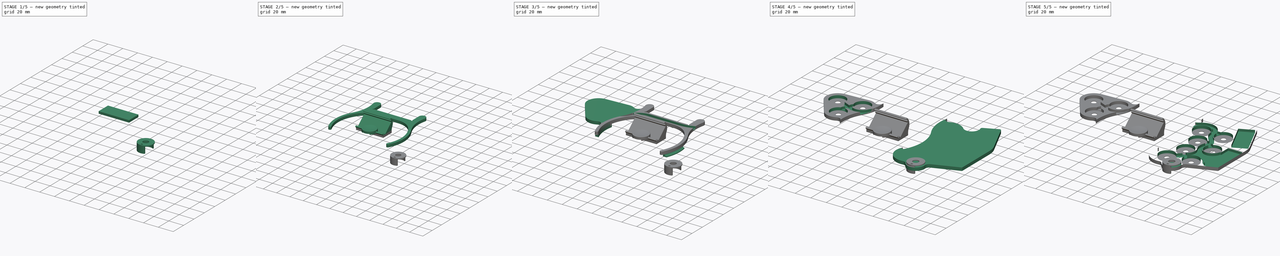
[diagram: build sequence overview — one tinted view per stage of 5, left to right]
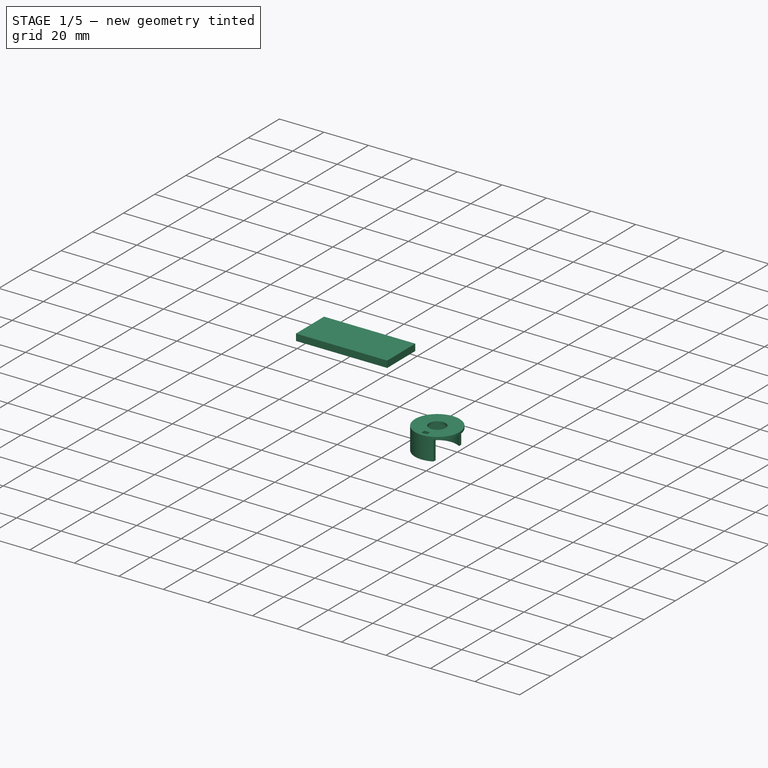
[diagram: stage 1 of 5 — iso view after this stage's code; geometry added in this stage tinted green]
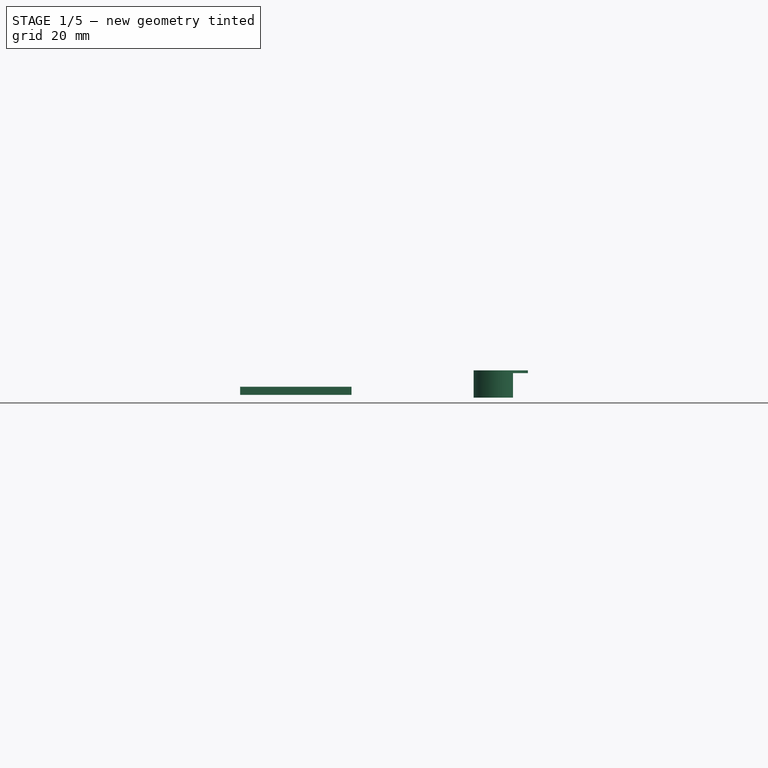
[diagram: stage 1 of 5 — front view after this stage's code; geometry added in this stage tinted green]
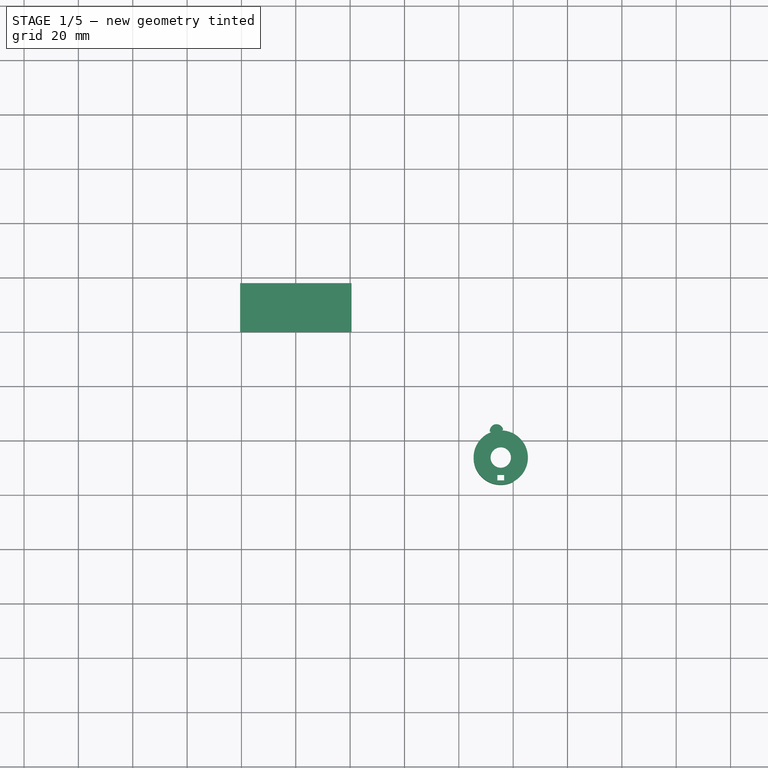
[diagram: stage 1 of 5 — top view after this stage's code; geometry added in this stage tinted green]
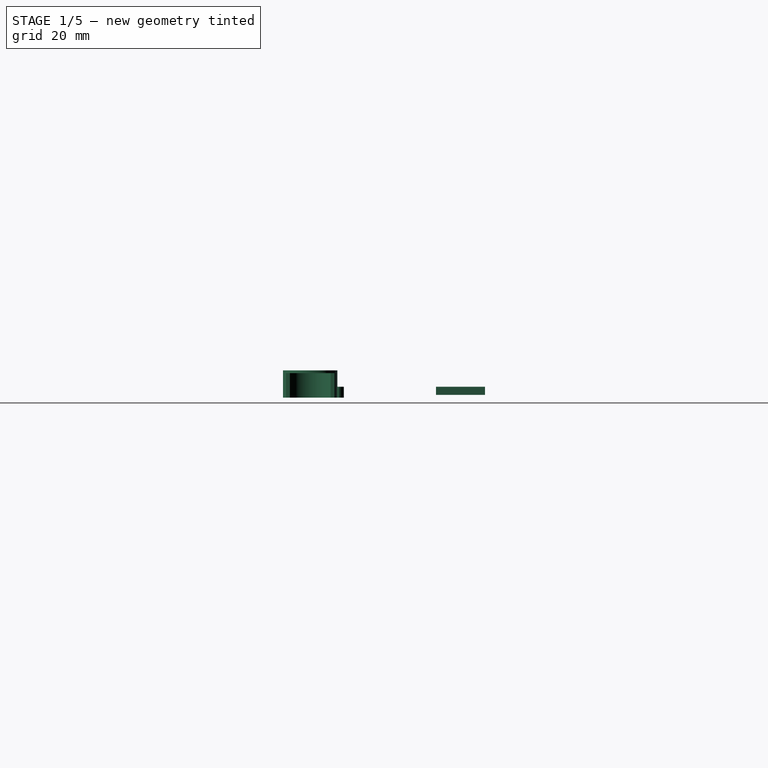
[diagram: stage 1 of 5 — right view after this stage's code; geometry added in this stage tinted green]
FCSTD DOCUMENT  (FreeCAD 0.20R)
Label: Guitar_Base
License: All rights reserved
LicenseURL: http://en.wikipedia.org/wiki/All_rights_reserved
objects: Sketcher::SketchObject×16, PartDesign::Pad×9, PartDesign::SubShapeBinder×8, PartDesign::Pocket×7, PartDesign::Body×6, App::Link×3, PartDesign::Hole×2, PartDesign::Groove×1, Spreadsheet::Sheet×1, PartDesign::Revolution×1
note: 70 computed .brp shape members not serialized (recipe doc carries the construction recipe); baked Part::Feature solids carry a one-line shape summary decoded from their .brp

FEATURE [Sketcher::SketchObject] Sketch011
  FullyConstrained = false
  MapMode = 5
  Support = -> [XY_Plane003]
  sketch-geometry (5):
    g0: LineSegment StartX=-5.56878 StartY=-8.30594 StartZ=0 EndX=5.55517 EndY=-8.30594 EndZ=0
    g1: LineSegment StartX=5.55517 StartY=-8.30594 StartZ=0 EndX=5.55517 EndY=5.69406 EndZ=0
    g2: LineSegment StartX=5.55517 StartY=5.69406 StartZ=0 EndX=-5.56878 EndY=5.69406 EndZ=0
    g3: LineSegment StartX=-5.56878 StartY=5.69406 StartZ=0 EndX=-5.56878 EndY=-8.30594 EndZ=0
    g4: Circle CenterX=0 CenterY=0 CenterZ=0 NormalX=0 NormalY=0 NormalZ=1 AngleXU=0 Radius=10
  constraints (12):
    c: Coincident(g0,g1)
    c: Coincident(g1,g2)
    c: Coincident(g2,g3)
    c: Coincident(g3,g0)
    c: Horizontal(g0)
    c: Horizontal(g2)
    c: Vertical(g1)
    c: Vertical(g3)
    c: DistanceY(g1,g1) = 14
    c: Coincident(g4,g-1)
    c: Diameter(g4) = 20
    c: PointOnObject(g0,g4)
FEATURE [PartDesign::Body] Body003  label="button"
  Group = -> [Sketch009,Revolution,Sketch010,Pocket007,Sketch011]
  Origin = -> Origin003
  Tip = -> Pocket007
FEATURE [Sketcher::SketchObject] Sketch012
  FullyConstrained = true
  MapMode = 5
  Support = -> [XY_Plane004]
  sketch-geometry (4):
    g0: LineSegment StartX=-20.5 StartY=0 StartZ=0 EndX=20.5 EndY=0 EndZ=0
    g1: LineSegment StartX=20.5 StartY=0 StartZ=0 EndX=20.5 EndY=18 EndZ=0
    g2: LineSegment StartX=20.5 StartY=18 StartZ=0 EndX=-20.5 EndY=18 EndZ=0
    g3: LineSegment StartX=-20.5 StartY=18 StartZ=0 EndX=-20.5 EndY=0 EndZ=0
  constraints (11):
    c: Coincident(g0,g1)
    c: Coincident(g1,g2)
    c: Coincident(g2,g3)
    c: Coincident(g3,g0)
    c: Horizontal(g0)
    c: Vertical(g1)
    c: Vertical(g3)
    c: DistanceY(g1,g1) = 18
    c: DistanceX(g2,g2) = 41
    c: PointOnObject(g0,g-1)
    c: Symmetric(g2,g1,g-2)
FEATURE [Sketcher::SketchObject] Sketch014
  FullyConstrained = true
  MapMode = 5
  Placement = pos=(0,0,0) rot=(0.57735,0.57735,0.57735;2.0944rad)
  Support = -> [YZ_Plane004]
  sketch-geometry (21):
    g0: LineSegment StartX=0 StartY=0 StartZ=0 EndX=18 EndY=0 EndZ=0
    g1: LineSegment StartX=18 StartY=0 StartZ=0 EndX=18 EndY=15.8745 EndZ=0
    g2: LineSegment StartX=0 StartY=0 StartZ=0 EndX=-1.78588 EndY=2.025 EndZ=0
    g3: LineSegment StartX=-1.78588 StartY=2.025 StartZ=0 EndX=-0.285882 EndY=3.34788 EndZ=0
    g4: LineSegment StartX=-0.285882 StartY=3.34788 StartZ=0 EndX=0.375556 EndY=2.59788 EndZ=0
    g5: LineSegment StartX=0.375556 StartY=2.59788 StartZ=0 EndX=-0.374444 EndY=1.93644 EndZ=0
    g6: LineSegment StartX=-0.374444 StartY=1.93644 StartZ=0 EndX=0.75 EndY=0.661438 EndZ=0
    g7: LineSegment StartX=0.75 StartY=0.661438 StartZ=0 EndX=2.25 EndY=1.98431 EndZ=0
    g8: LineSegment StartX=2.25 StartY=1.98431 StartZ=0 EndX=3.90359 EndY=0.109313 EndZ=0
    g9: LineSegment StartX=3.90359 StartY=0.109313 StartZ=0 EndX=17.4036 EndY=12.0152 EndZ=0
    g10: LineSegment StartX=17.4036 StartY=12.0152 StartZ=0 EndX=15.75 EndY=13.8902 EndZ=0
    g11: LineSegment StartX=15.75 StartY=13.8902 StartZ=0 EndX=17.25 EndY=15.2131 EndZ=0
    g12: LineSegment StartX=17.25 StartY=15.2131 StartZ=0 EndX=16.1256 EndY=16.4881 EndZ=0
    g13: LineSegment StartX=16.1256 StartY=16.4881 StartZ=0 EndX=15.3756 EndY=15.8266 EndZ=0
    g14: LineSegment StartX=15.3756 StartY=15.8266 StartZ=0 EndX=14.7141 EndY=16.5766 EndZ=0
    g15: LineSegment StartX=14.7141 StartY=16.5766 StartZ=0 EndX=16.2141 EndY=17.8995 EndZ=0
    g16: LineSegment StartX=16.2141 StartY=17.8995 StartZ=0 EndX=18 EndY=15.8745 EndZ=0
    g17: LineSegment StartX=17.25 StartY=15.2131 StartZ=0 EndX=18 EndY=15.8745 EndZ=0
    g18: LineSegment StartX=0 StartY=0 StartZ=0 EndX=0.75 EndY=0.661438 EndZ=0
    g19: ArcOfCircle CenterX=10.6944 CenterY=9.43154 CenterZ=0 NormalX=0 NormalY=0 NormalZ=1 AngleXU=0 Radius=9.74085 StartAngle=5.77782 EndAngle=7.00592
    g20: ArcOfCircle CenterX=27.7409 CenterY=0 CenterZ=0 NormalX=0 NormalY=0 NormalZ=1 AngleXU=0 Radius=9.74085 StartAngle=2.63623 EndAngle=3.14159
  constraints (59):
    c: DistanceX(g0,g0) = 18
    c: Coincident(g0,g-1)
    c: PointOnObject(g0,g-1)
    c: Coincident(g2,g0)
    c: Coincident(g3,g2)
    c: Coincident(g4,g3)
    c: Coincident(g5,g4)
    c: Coincident(g6,g5)
    c: Coincident(g7,g6)
    c: Coincident(g8,g7)
    c: Coincident(g9,g8)
    c: Coincident(g10,g9)
    c: Coincident(g11,g10)
    c: Coincident(g12,g11)
    c: Coincident(g13,g12)
    c: Coincident(g14,g13)
    c: Coincident(g15,g14)
    c: Coincident(g16,g15)
    c: Perpendicular(g8,g7)
    c: Perpendicular(g11,g10)
    c: Equal(g4,g14)
    c: Equal(g5,g4)
    c: Distance(g12) = 1.7
    c: Equal(g13,g14)
    c: Distance(g11,g16) = 1
    c: Coincident(g17,g11)
    c: Coincident(g17,g16)
    c: Coincident(g18,g2)
    c: Coincident(g18,g6)
    c: Parallel(g17,g18)
    c: Distance(g2,g16) = 24
    c: Parallel(g11,g17)
    c: Coincident(g16,g1)
    c: Parallel(g9,g11)
    c: Parallel(g11,g13)
    c: Parallel(g11,g15)
    c: Parallel(g7,g5)
    c: Parallel(g5,g3)
    c: Equal(g18,g17)
    c: Perpendicular(g12,g13)
    c: Perpendicular(g16,g17)
    c: Perpendicular(g2,g18)
    c: Parallel(g2,g4)
    c: Parallel(g2,g6)
    c: Parallel(g12,g14)
    c: Tangent(g7,g11)
    c: Equal(g6,g12)
    c: Equal(g17,g14)
    c: Distance(g7) = 2
    c: Equal(g7,g11)
    c: Distance(g10) = 2.5
    c: Tangent(g20,g19) = 1.5708
    c: Tangent(g19,g16) = 1.5708
    c: Equal(g20,g19)
    c: Vertical(g1)
    c: Coincident(g1,g0)
    c: PointOnObject(g20,g-1)
    c: PointOnObject(g20,g-1)
    c: Tangent(g20,g1)
FEATURE [PartDesign::Pad] Pad004
  Direction = (0,0,1)
  Length = 3
  Length2 = 10
  Profile = -> Sketch012
  ReferenceAxis = -> Sketch012 [N_Axis]
  Refine = true
  Reversed = true
  Type = 0
FEATURE [PartDesign::Body] Body004  label="screen_angler"
  Group = -> [Sketch012,Sketch014,Pad004,Pad005]
  Origin = -> Origin004
  Placement = pos=(91.5596,45.4813,5) rot=(0,0,-1;1.15192rad)
  Tip = -> Pad005
FEATURE [PartDesign::SubShapeBinder] Binder007
  BindCopyOnChange = 0
  BindMode = 0
  ClaimChildren = false
  Context = -> Body005 [Binder007.]
  Fuse = false
  MakeFace = true
  OffsetFill = false
  OffsetIntersection = false
  OffsetJoinType = 0
  OffsetOpenResult = false
  PartialLoad = false
  Refine = true
  Relative = true
  Support = -> [Link001]
  _Version = 2
FEATURE [Sketcher::SketchObject] Sketch015
  ExternalGeometry = -> [Binder007]
  FullyConstrained = true
  MapMode = 5
  Support = -> [XY_Plane005]
  sketch-geometry (9):
    g0: ArcOfCircle CenterX=73.8694 CenterY=-36.4199 CenterZ=0 NormalX=0 NormalY=0 NormalZ=1 AngleXU=0 Radius=2.5 StartAngle=0.231429 EndAngle=3.22301
    g1: ArcOfCircle CenterX=71.468 CenterY=-37.1149 CenterZ=0 NormalX=0 NormalY=0 NormalZ=1 AngleXU=0 Radius=0.5 StartAngle=3.57367 EndAngle=8.03556
    g2: ArcOfCircle CenterX=76.3682 CenterY=-36.3421 CenterZ=0 NormalX=0 NormalY=0 NormalZ=1 AngleXU=0 Radius=0.5 StartAngle=1.70206 EndAngle=6.16395
    g3: LineSegment StartX=79.9342 StartY=-37.371 StartZ=0 EndX=79.9342 EndY=-55.2245 EndZ=0
    g4: ArcOfCircle CenterX=75.4272 CenterY=-46.2978 CenterZ=0 NormalX=0 NormalY=0 NormalZ=1 AngleXU=0 Radius=10 StartAngle=1.10325 EndAngle=1.42656
    g5: ArcOfCircle CenterX=75.4272 CenterY=-46.2978 CenterZ=0 NormalX=0 NormalY=0 NormalZ=1 AngleXU=0 Radius=10 StartAngle=2.02788 EndAngle=5.17993
    g6: ArcOfCircle CenterX=75.4272 CenterY=-46.2978 CenterZ=0 NormalX=0 NormalY=0 NormalZ=1 AngleXU=0 Radius=8.75 StartAngle=1.0297 EndAngle=5.25349
    g7: LineSegment StartX=79.9342 StartY=-38.7978 StartZ=0 EndX=79.9342 EndY=-37.371 EndZ=0
    g8: LineSegment StartX=79.9342 StartY=-53.7978 StartZ=0 EndX=79.9342 EndY=-55.2245 EndZ=0
  constraints (26):
    c: PointOnObject(g1,g-3)
    c: Coincident(g0,g-4)
    c: PointOnObject(g0,g-4)
    c: Coincident(g1,g-4)
    c: Coincident(g1,g0)
    c: Coincident(g2,g-4)
    c: Coincident(g2,g0)
    c: Equal(g1,g2)
    c: Radius(g2) = 0.5
    c: PointOnObject(g2,g-3)
    c: Vertical(g3)
    c: Coincident(g4,g-3)
    c: Coincident(g4,g2)
    c: Coincident(g4,g3)
    c: Coincident(g5,g4)
    c: Coincident(g5,g1)
    c: Coincident(g5,g3)
    c: Coincident(g6,g4)
    c: PointOnObject(g6,g3)
    c: PointOnObject(g6,g3)
    c: Diameter(g6) = 17.5
    c: Coincident(g7,g6)
    c: Coincident(g7,g4)
    c: Coincident(g8,g6)
    c: Coincident(g8,g5)
    c: DistanceY(g6,g6) = 15
FEATURE [PartDesign::Pad] Pad006
  Direction = (0,0,1)
  Length = 4
  Length2 = 10
  Profile = -> Sketch015
  ReferenceAxis = -> Sketch015 [N_Axis]
  Refine = true
  Reversed = true
  Type = 0
FEATURE [Sketcher::SketchObject] Sketch016
  ExternalGeometry = -> [Binder007]
  FullyConstrained = true
  MapMode = 5
  Support = -> [XY_Plane005]
  sketch-geometry (7):
    g0: Circle CenterX=75.4272 CenterY=-46.2978 CenterZ=0 NormalX=0 NormalY=0 NormalZ=1 AngleXU=0 Radius=10
    g1: Circle CenterX=75.4272 CenterY=-46.2978 CenterZ=0 NormalX=0 NormalY=0 NormalZ=1 AngleXU=0 Radius=8.75
    g2: LineSegment StartX=79.9342 StartY=-37.371 StartZ=0 EndX=79.9342 EndY=-55.2245 EndZ=0
    g3: ArcOfCircle CenterX=75.4272 CenterY=-46.2978 CenterZ=0 NormalX=0 NormalY=0 NormalZ=1 AngleXU=0 Radius=10 StartAngle=1.10325 EndAngle=5.17993
    g4: ArcOfCircle CenterX=75.4272 CenterY=-46.2978 CenterZ=0 NormalX=0 NormalY=0 NormalZ=1 AngleXU=0 Radius=8.75 StartAngle=1.0297 EndAngle=5.25349
    g5: LineSegment StartX=79.9342 StartY=-38.7978 StartZ=0 EndX=79.9342 EndY=-37.371 EndZ=0
    g6: LineSegment StartX=79.9342 StartY=-55.2245 StartZ=0 EndX=79.9342 EndY=-53.7978 EndZ=0
  constraints (18):
    c: Coincident(g0,g-3)
    c: PointOnObject(g-3,g0)
    c: Coincident(g1,g0)
    c: Diameter(g1) = 17.5
    c: PointOnObject(g2,g0)
    c: Vertical(g2)
    c: Coincident(g3,g0)
    c: Coincident(g3,g2)
    c: Coincident(g3,g2)
    c: Coincident(g4,g3)
    c: PointOnObject(g4,g1)
    c: PointOnObject(g4,g2)
    c: PointOnObject(g4,g2)
    c: Coincident(g5,g4)
    c: Coincident(g5,g3)
    c: Coincident(g6,g3)
    c: Coincident(g6,g4)
    c: DistanceY(g4,g4) = 15
FEATURE [PartDesign::Pad] Pad007
  BaseFeature = -> Pad006
  Direction = (0,0,1)
  Length = 5
  Length2 = 10
  Profile = -> Sketch016
  ReferenceAxis = -> Sketch016 [N_Axis]
  Refine = true
  Type = 0
FEATURE [Sketcher::SketchObject] Sketch017
  AttachmentOffset = pos=(0,0,5) rot=(0,0,1;0rad)
  ExternalGeometry = -> [Binder007]
  FullyConstrained = true
  MapMode = 5
  Placement = pos=(0,0,5) rot=(0,0,1;0rad)
  Support = -> [XY_Plane005]
  sketch-geometry (8):
    g0: Circle CenterX=75.4272 CenterY=-46.2978 CenterZ=0 NormalX=0 NormalY=0 NormalZ=1 AngleXU=0 Radius=3.75
    g1: LineSegment StartX=74.1772 StartY=-54.7054 StartZ=0 EndX=76.6772 EndY=-54.7054 EndZ=0
    g2: LineSegment StartX=76.6772 StartY=-54.7054 StartZ=0 EndX=76.6772 EndY=-52.7054 EndZ=0
    g3: LineSegment StartX=76.6772 StartY=-52.7054 StartZ=0 EndX=74.1772 EndY=-52.7054 EndZ=0
    g4: LineSegment StartX=74.1772 StartY=-52.7054 StartZ=0 EndX=74.1772 EndY=-54.7054 EndZ=0
    g5: LineSegment StartX=74.1772 StartY=-54.7054 StartZ=0 EndX=75.4272 EndY=-46.2978 EndZ=0
    g6: LineSegment StartX=76.6772 StartY=-54.7054 StartZ=0 EndX=75.4272 EndY=-46.2978 EndZ=0
    g7: Circle CenterX=75.4272 CenterY=-46.2978 CenterZ=0 NormalX=0 NormalY=0 NormalZ=1 AngleXU=0 Radius=10
  constraints (20):
    c: Diameter(g0) = 7.5
    c: Coincident(g0,g-3)
    c: Coincident(g1,g2)
    c: Coincident(g2,g3)
    c: Coincident(g3,g4)
    c: Coincident(g4,g1)
    c: Coincident(g5,g1)
    c: Coincident(g5,g0)
    c: Coincident(g6,g1)
    c: Coincident(g6,g0)
    c: Equal(g5,g6)
    c: Distance(g5) = 8.5
    c: Horizontal(g1)
    c: Horizontal(g3)
    c: Vertical(g4)
    c: Vertical(g2)
    c: DistanceX(g3,g3) = 2.5
    c: DistanceY(g2,g2) = 2
    c: Coincident(g7,g0)
    c: PointOnObject(g-3,g7)
FEATURE [PartDesign::Pad] Pad008
  BaseFeature = -> Pad007
  Direction = (0,0,1)
  Length = 1
  Length2 = 10
  Profile = -> Sketch017
  ReferenceAxis = -> Sketch017 [N_Axis]
  Refine = true
  Type = 0
FEATURE [PartDesign::Body] Body005  label="trimmer_holder"
  Group = -> [Binder007,Sketch015,Pad006,Sketch016,Pad007,Sketch017,Pad008]
  Origin = -> Origin005
  Placement = pos=(0,0,4) rot=(0,0,1;0rad)
  Tip = -> Pad008
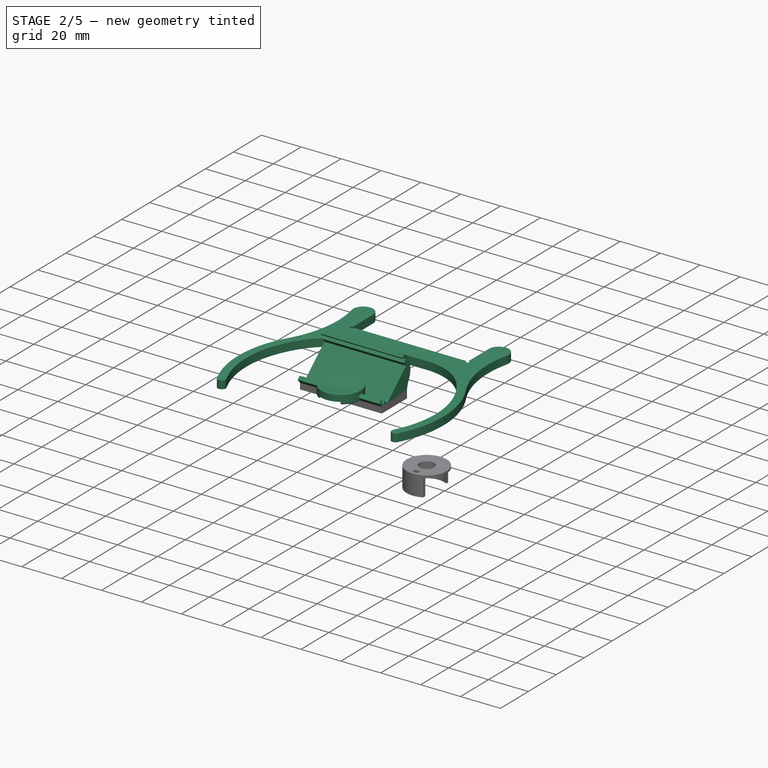
[diagram: stage 2 of 5 — iso view after this stage's code; geometry added in this stage tinted green]
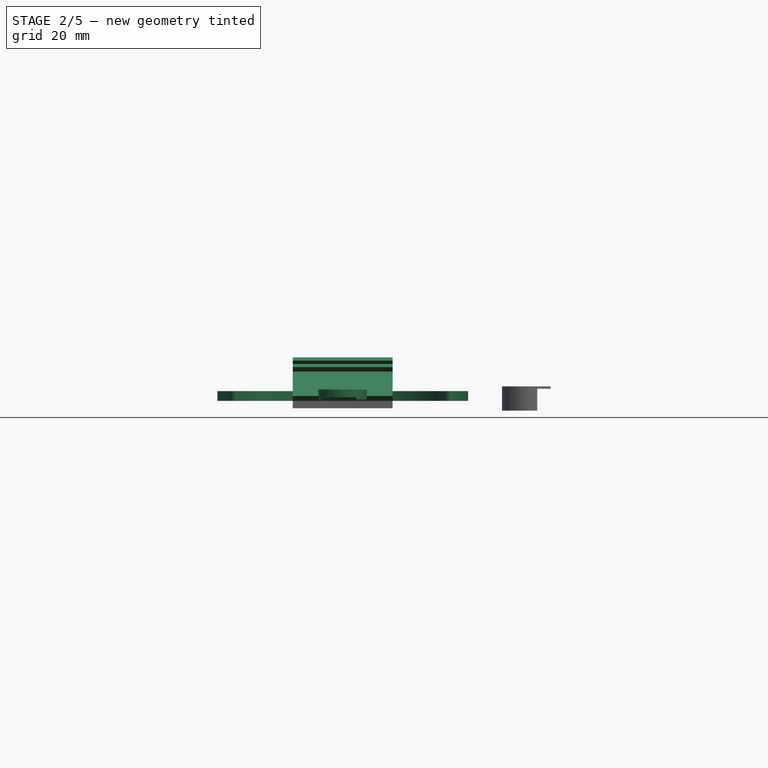
[diagram: stage 2 of 5 — front view after this stage's code; geometry added in this stage tinted green]
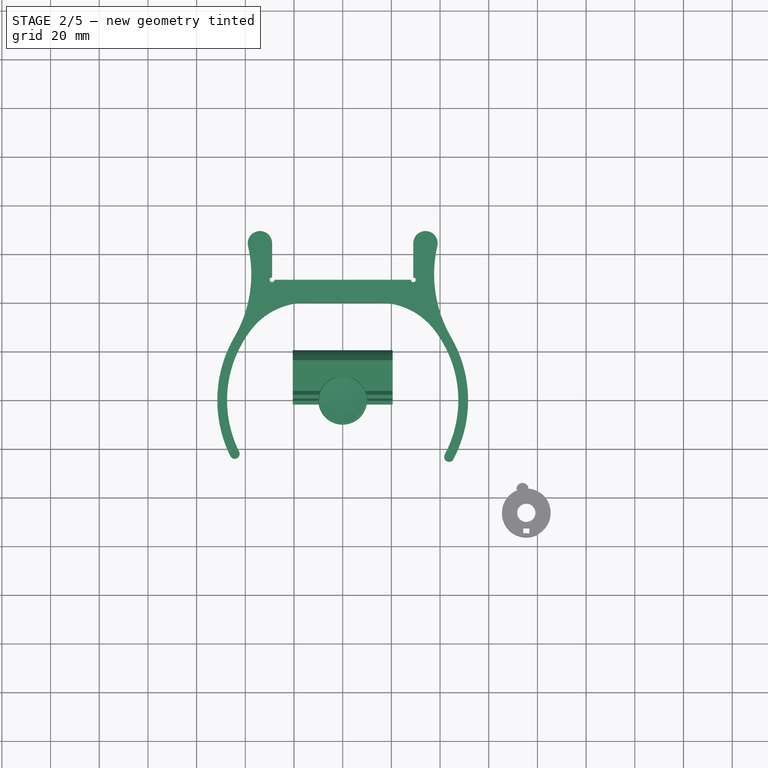
[diagram: stage 2 of 5 — top view after this stage's code; geometry added in this stage tinted green]
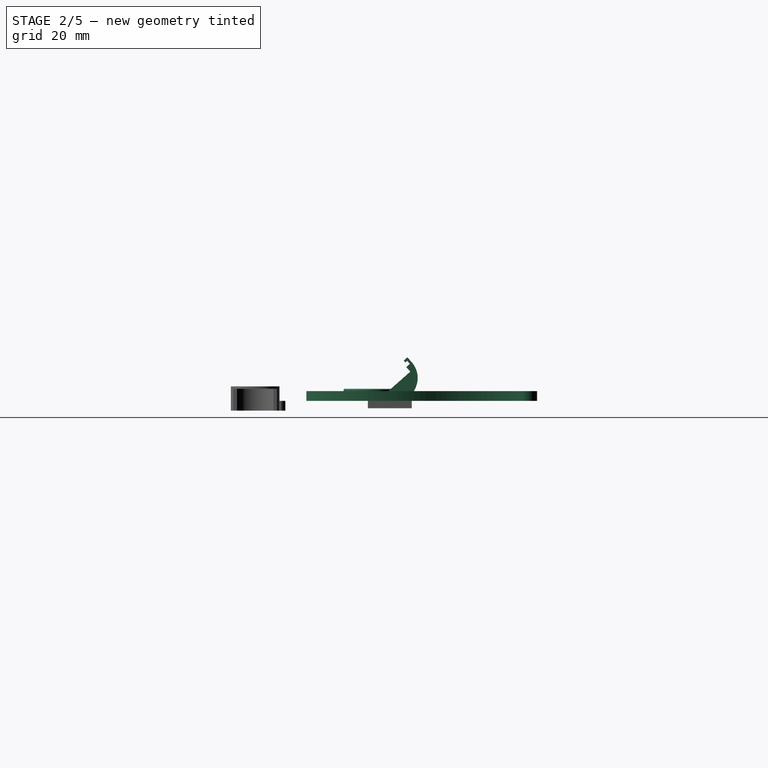
[diagram: stage 2 of 5 — right view after this stage's code; geometry added in this stage tinted green]
FEATURE [Sketcher::SketchObject] Sketch  label="Original"
  FullyConstrained = true
  MapMode = 5
  Support = -> [XY_Plane]
  expr: Constraints[1] = <<Misure>>.A2
  expr: Constraints[20] = <<Misure>>.D4
  expr: Constraints[37] = <<Misure>>.A4
  expr: Constraints[38] = <<Misure>>.D2
  expr: Constraints[56] = <<Misure>>.C4 + 2
  expr: Constraints[57] = <<Touchs>>.Constraints.angle_last
  expr: Constraints[72] = <<Misure>>.A4
  expr: Constraints[9] = <<Misure>>.C2
  sketch-geometry (31):
    g0: Circle CenterX=0 CenterY=0 CenterZ=0 NormalX=0 NormalY=0 NormalZ=1 AngleXU=0 Radius=49.5
    g1: LineSegment StartX=-29 StartY=49.5 StartZ=0 EndX=29 EndY=49.5 EndZ=0
    g2: LineSegment StartX=29 StartY=49.5 StartZ=0 EndX=29 EndY=40.1155 EndZ=0
    g3: LineSegment StartX=29 StartY=40.1155 StartZ=0 EndX=-29 EndY=40.1155 EndZ=0
    g4: LineSegment StartX=-29 StartY=40.1155 StartZ=0 EndX=-29 EndY=49.5 EndZ=0
    g5: LineSegment StartX=-29 StartY=49.5 StartZ=0 EndX=-29 EndY=64.5 EndZ=0
    g6: ArcOfCircle CenterX=0 CenterY=0 CenterZ=0 NormalX=0 NormalY=0 NormalZ=1 AngleXU=0 Radius=51.5 StartAngle=2.61501 EndAngle=3.60215
    g7: ArcOfCircle CenterX=-89.0464 CenterY=51.7663 CenterZ=0 NormalX=0 NormalY=0 NormalZ=1 AngleXU=0 Radius=51.5 StartAngle=5.7566 EndAngle=6.51051
    g8: ArcOfCircle CenterX=-34 CenterY=64.5 CenterZ=0 NormalX=0 NormalY=0 NormalZ=1 AngleXU=0 Radius=5 StartAngle=-9e-16 EndAngle=3.36892
    g9: GeomPoint X=-44.3424 Y=-22 Z=0
    g10: ArcOfCircle CenterX=34 CenterY=64.5 CenterZ=0 NormalX=0 NormalY=0 NormalZ=1 AngleXU=0 Radius=5 StartAngle=6.05586 EndAngle=9.42478
    g11: ArcOfCircle CenterX=89.0464 CenterY=51.7663 CenterZ=0 NormalX=0 NormalY=0 NormalZ=1 AngleXU=0 Radius=51.5 StartAngle=2.91426 EndAngle=3.66818
    g12: ArcOfCircle CenterX=0 CenterY=0 CenterZ=0 NormalX=0 NormalY=0 NormalZ=1 AngleXU=0 Radius=51.5 StartAngle=5.794 EndAngle=6.80977
    g13: LineSegment StartX=29 StartY=49.5 StartZ=0 EndX=29 EndY=64.5 EndZ=0
    g14: GeomPoint X=43.6944 Y=-23.2605 Z=0
    g15: LineSegment StartX=43.6944 StartY=-23.2605 StartZ=0 EndX=45.4598 EndY=-24.2003 EndZ=0
    g16: LineSegment StartX=-44.3424 StartY=-22 StartZ=0 EndX=-46.134 EndY=-22.8889 EndZ=0
    g17: ArcOfCircle CenterX=-44.3424 CenterY=-22 CenterZ=0 NormalX=0 NormalY=0 NormalZ=1 AngleXU=0 Radius=2 StartAngle=3.60215 EndAngle=6.74374
    g18: ArcOfCircle CenterX=43.6944 CenterY=-23.2605 CenterZ=0 NormalX=0 NormalY=0 NormalZ=1 AngleXU=0 Radius=2 StartAngle=2.65241 EndAngle=5.794
    g19: ArcOfCircle CenterX=0 CenterY=0 CenterZ=0 NormalX=0 NormalY=0 NormalZ=1 AngleXU=0 Radius=47.5 StartAngle=2.48574 EndAngle=3.60215
    g20: ArcOfCircle CenterX=0 CenterY=0 CenterZ=0 NormalX=0 NormalY=0 NormalZ=1 AngleXU=0 Radius=47.5 StartAngle=5.794 EndAngle=6.93904
    g21: ArcOfCircle CenterX=-15 CenterY=11.5423 CenterZ=0 NormalX=0 NormalY=0 NormalZ=1 AngleXU=0 Radius=28.5732 StartAngle=1.5708 EndAngle=2.48574
    g22: ArcOfCircle CenterX=15 CenterY=11.5423 CenterZ=0 NormalX=0 NormalY=0 NormalZ=1 AngleXU=0 Radius=28.5732 StartAngle=0.655855 EndAngle=1.5708
    g23: LineSegment StartX=-15 StartY=40.1155 StartZ=0 EndX=15 EndY=40.1155 EndZ=0
    g24: LineSegment StartX=0 StartY=0 StartZ=0 EndX=-44.5232 EndY=25.8831 EndZ=0
    g25: LineSegment StartX=-38.8714 StartY=63.3731 StartZ=0 EndX=-44.5232 EndY=25.8831 EndZ=0
    g26: ArcOfCircle CenterX=29 CenterY=49.5 CenterZ=0 NormalX=0 NormalY=0 NormalZ=1 AngleXU=0 Radius=1 StartAngle=3.14159 EndAngle=7.85398
    g27: ArcOfCircle CenterX=-29 CenterY=49.5 CenterZ=0 NormalX=0 NormalY=0 NormalZ=1 AngleXU=0 Radius=1 StartAngle=1.5708 EndAngle=6.28319
    g28: LineSegment StartX=-29 StartY=50.5 StartZ=0 EndX=-29 EndY=64.5 EndZ=0
    g29: LineSegment StartX=-28 StartY=49.5 StartZ=0 EndX=28 EndY=49.5 EndZ=0
    g30: LineSegment StartX=29 StartY=50.5 StartZ=0 EndX=29 EndY=64.5 EndZ=0
  constraints (80):
    c: Coincident(g0,g-1)
    c: Diameter(g0) = 99
    c: Coincident(g1,g2)
    c: Coincident(g2,g3)
    c: Coincident(g3,g4)
    c: Coincident(g4,g1)
    c: Horizontal(g1)
    c: Vertical(g2)
    c: Vertical(g4)
    c: DistanceX(g3,g3) = 58
    c: PointOnObject(g3,g0)
    c: PointOnObject(g2,g0)
    c: Tangent(g1,g0)
    c: Coincident(g5,g1)
    c: Vertical(g5)
    c: Coincident(g6,g0)
    c: Tangent(g8,g5) = -1.5708
    c: Tangent(g8,g7) = 1.5708
    c: Tangent(g7,g6) = 1.5708
    c: PointOnObject(g9,g0)
    c: DistanceY(g5,g5) = 15
    c: Coincident(g12,g6)
    c: Tangent(g11,g10) = 1.5708
    c: Tangent(g12,g11) = 1.5708
    c: Coincident(g13,g1)
    c: Coincident(g13,g10)
    c: Vertical(g13)
    c: Tangent(g13,g10)
    c: Equal(g5,g13)
    c: PointOnObject(g14,g0)
    c: Coincident(g15,g14)
    c: Coincident(g15,g12)
    c: Coincident(g16,g9)
    c: Coincident(g16,g6)
    c: Perpendicular(g6,g16)
    c: Perpendicular(g0,g15)
    c: Equal(g16,g15)
    c: Distance(g15) = 2
    c: Radius(g10) = 5
    c: Equal(g8,g10)
    c: Coincident(g17,g9)
    c: Coincident(g17,g6)
    c: Coincident(g18,g14)
    c: Coincident(g18,g12)
    c: Coincident(g19,g6)
    c: Coincident(g20,g6)
    c: Tangent(g22,g20) = -1.5708
    c: Tangent(g21,g19) = -1.5708
    c: Tangent(g21,g3) = -1.5708
    c: Tangent(g22,g3) = -1.5708
    c: Coincident(g23,g21)
    c: Coincident(g23,g22)
    c: Symmetric(g21,g22,g-2)
    c: DistanceX(g23,g23) = 30
    c: Tangent(g20,g18) = 1.5708
    c: Tangent(g19,g17) = 1.5708
    c: DistanceY(g17,g6) = 22
    c: Angle(g15,g-1) = 0.489187
    c: Equal(g12,g11)
    c: Equal(g6,g7)
    c: Coincident(g24,g6)
    c: Coincident(g24,g6)
    c: Angle(g-1,g24) = 2.61501  'angle'
    c: Coincident(g25,g7)
    c: Coincident(g25,g6)
    c: Distance(g25) = 37.9136  'end'
    c: Coincident(g26,g1)
    c: PointOnObject(g26,g1)
    c: PointOnObject(g26,g13)
    c: Coincident(g27,g1)
    c: PointOnObject(g27,g5)
    c: PointOnObject(g27,g1)
    c: Diameter(g26) = 2
    c: Equal(g27,g26)
    c: Coincident(g28,g27)
    c: Coincident(g28,g8)
    c: Coincident(g29,g27)
    c: Coincident(g29,g26)
    c: Coincident(g30,g26)
    c: Coincident(g30,g10)
FEATURE [PartDesign::Pad] Pad
  Direction = (0,0,1)
  Length = 4
  Length2 = 10
  Profile = -> Sketch
  ReferenceAxis = -> Sketch [N_Axis]
  Refine = true
  Type = 0
FEATURE [PartDesign::Body] Body001  label="Left"
  Group = -> [Sketch005,Pad003,Binder001,Pocket,Binder002,Hole,Binder006,Pocket006]
  Origin = -> Origin001
  Tip = -> Pocket006
FEATURE [Sketcher::SketchObject] Sketch009
  FullyConstrained = true
  MapMode = 5
  Placement = pos=(0,0,0) rot=(1,0,0;1.5708rad)
  Support = -> [XZ_Plane003]
  expr: Constraints[9] = <<Misure>>.A6 / 2
  sketch-geometry (9):
    g0: LineSegment StartX=-7.5e-15 StartY=0 StartZ=0 EndX=-7.5e-15 EndY=4 EndZ=0
    g1: LineSegment StartX=-7.5e-15 StartY=0 StartZ=0 EndX=9 EndY=0 EndZ=0
    g2: LineSegment StartX=10 StartY=1 StartZ=0 EndX=10 EndY=4.5 EndZ=0
    g3: ArcOfCircle CenterX=0 CenterY=45 CenterZ=0 NormalX=0 NormalY=0 NormalZ=1 AngleXU=0 Radius=41 StartAngle=4.71239 EndAngle=4.9337
    g4: LineSegment StartX=9.5 StartY=5 StartZ=0 EndX=9 EndY=5 EndZ=0
    g5: ArcOfCircle CenterX=9.5 CenterY=4.5 CenterZ=0 NormalX=0 NormalY=0 NormalZ=1 AngleXU=0 Radius=0.5 StartAngle=-9e-16 EndAngle=1.5708
    g6: GeomPoint X=10 Y=5 Z=0
    g7: ArcOfCircle CenterX=9 CenterY=1 CenterZ=0 NormalX=0 NormalY=0 NormalZ=1 AngleXU=0 Radius=1 StartAngle=4.71239 EndAngle=6.28319
    g8: GeomPoint X=10 Y=0 Z=0
  constraints (23):
    c: Coincident(g0,g-1)
    c: Vertical(g0)
    c: Coincident(g1,g0)
    c: Horizontal(g1)
    c: Vertical(g2)
    c: PointOnObject(g3,g-2)
    c: Coincident(g3,g0)
    c: Horizontal(g4)
    c: Coincident(g3,g4)
    c: DistanceX(g1,g8) = 10
    c: DistanceX(g4,g6) = 1
    c: DistanceY(g8,g6) = 5
    c: DistanceY(g0,g0) = 4
    c: PointOnObject(g6,g4)
    c: PointOnObject(g6,g2)
    c: Tangent(g4,g5) = -1.5708
    c: Tangent(g2,g5) = -1.5708
    c: Radius(g5) = 0.5
    c: PointOnObject(g8,g1)
    c: PointOnObject(g8,g2)
    c: Tangent(g1,g7) = -1.5708
    c: Tangent(g2,g7) = -1.5708
    c: Radius(g7) = 1
FEATURE [PartDesign::Revolution] Revolution
  Angle = 360
  Axis = (0,-2e-16,1)
  Base = (0,0,0)
  Placement = pos=(0,0,0) rot=(1,0,0;1.5708rad)
  Profile = -> Sketch009
  ReferenceAxis = -> Sketch009 [V_Axis]
  Refine = true
  Reversed = true
FEATURE [Sketcher::SketchObject] Sketch010
  FullyConstrained = true
  MapMode = 5
  Placement = pos=(0,0,0) rot=(1,0,0;1.5708rad)
  Support = -> [XZ_Plane003]
  sketch-geometry (4):
    g0: LineSegment StartX=-5.6 StartY=0 StartZ=0 EndX=5.6 EndY=0 EndZ=0
    g1: LineSegment StartX=5.6 StartY=0 StartZ=0 EndX=5.6 EndY=1.5 EndZ=0
    g2: LineSegment StartX=5.6 StartY=1.5 StartZ=0 EndX=-5.6 EndY=1.5 EndZ=0
    g3: LineSegment StartX=-5.6 StartY=1.5 StartZ=0 EndX=-5.6 EndY=0 EndZ=0
  constraints (11):
    c: Coincident(g0,g1)
    c: Coincident(g1,g2)
    c: Coincident(g2,g3)
    c: Coincident(g3,g0)
    c: Horizontal(g0)
    c: Vertical(g1)
    c: Vertical(g3)
    c: PointOnObject(g0,g-1)
    c: DistanceY(g1,g1) = 1.5
    c: Symmetric(g2,g1,g-2)
    c: DistanceX(g2,g2) = 11.2
FEATURE [PartDesign::Pocket] Pocket007
  BaseFeature = -> Revolution
  Direction = (0,1,2e-16)
  Length = 7
  Length2 = 10
  Placement = pos=(0,0,0) rot=(1,0,0;1.5708rad)
  Profile = -> Sketch010
  ReferenceAxis = -> Sketch010 [N_Axis]
  Refine = true
  Type = 4
FEATURE [PartDesign::Pad] Pad005
  BaseFeature = -> Pad004
  Direction = (1,-2e-16,3e-16)
  Length = 41
  Length2 = 10
  Midplane = true
  Profile = -> Sketch014
  ReferenceAxis = -> Sketch014 [N_Axis]
  Refine = true
  Type = 0
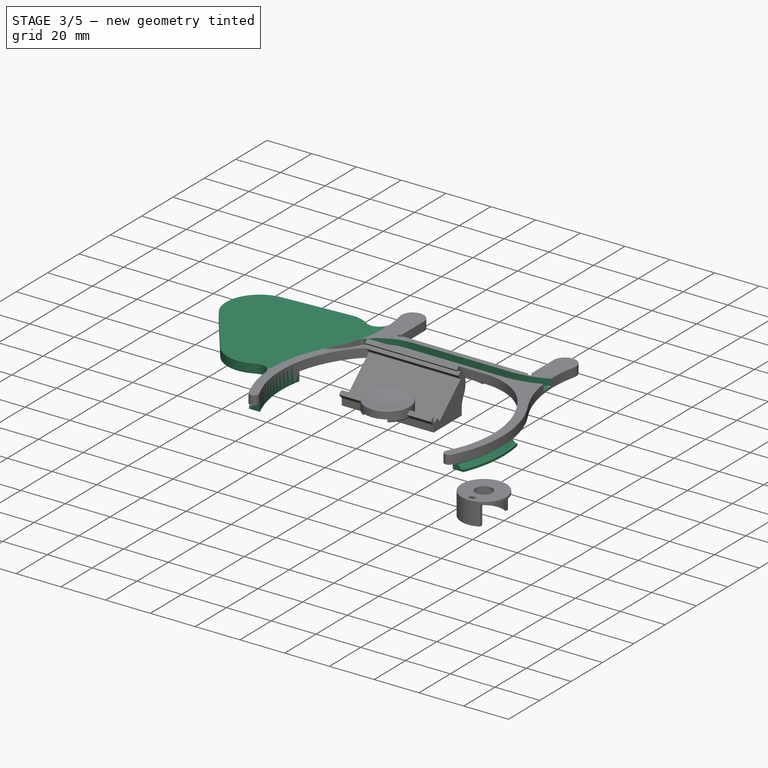
[diagram: stage 3 of 5 — iso view after this stage's code; geometry added in this stage tinted green]
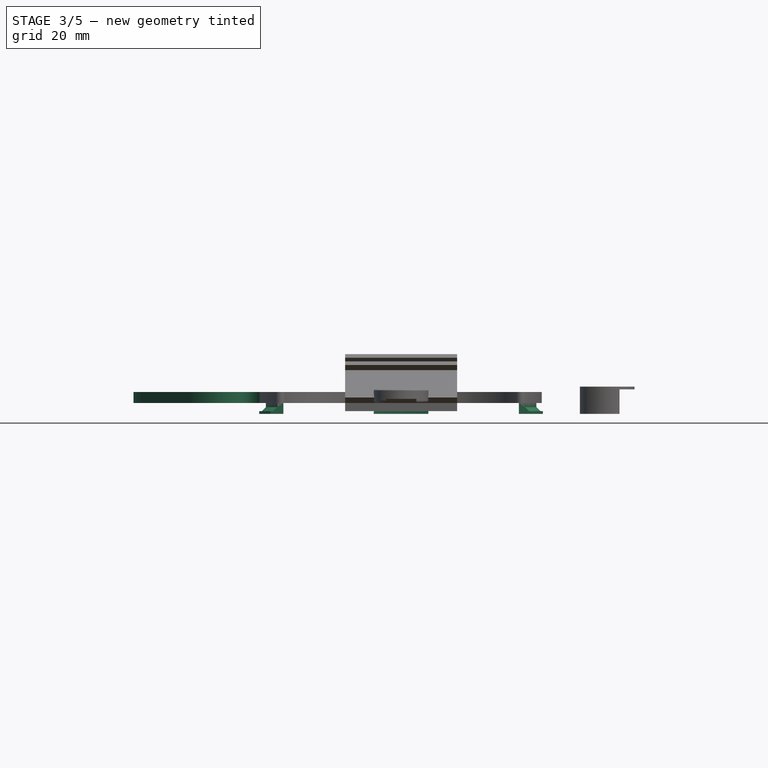
[diagram: stage 3 of 5 — front view after this stage's code; geometry added in this stage tinted green]
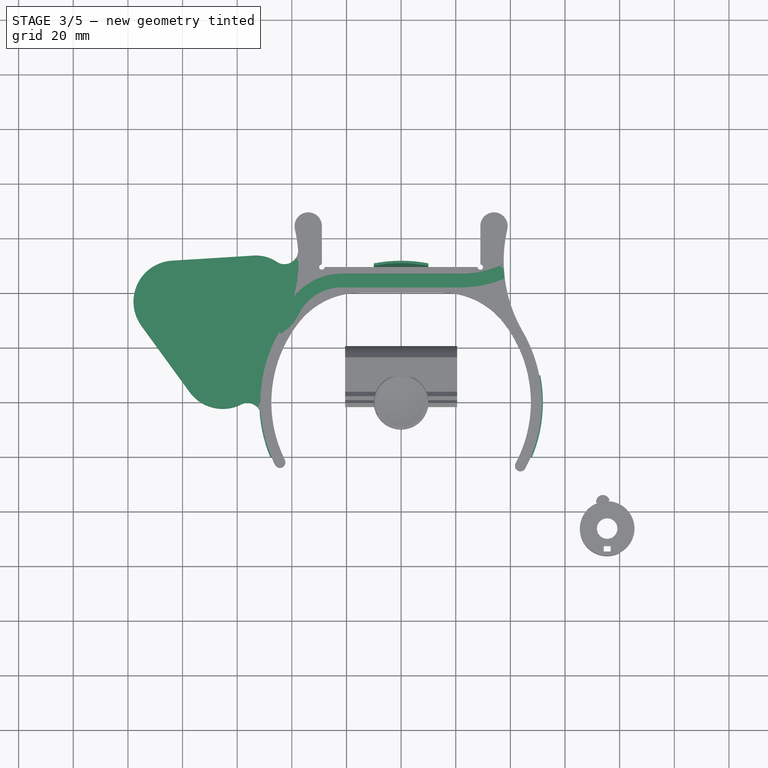
[diagram: stage 3 of 5 — top view after this stage's code; geometry added in this stage tinted green]
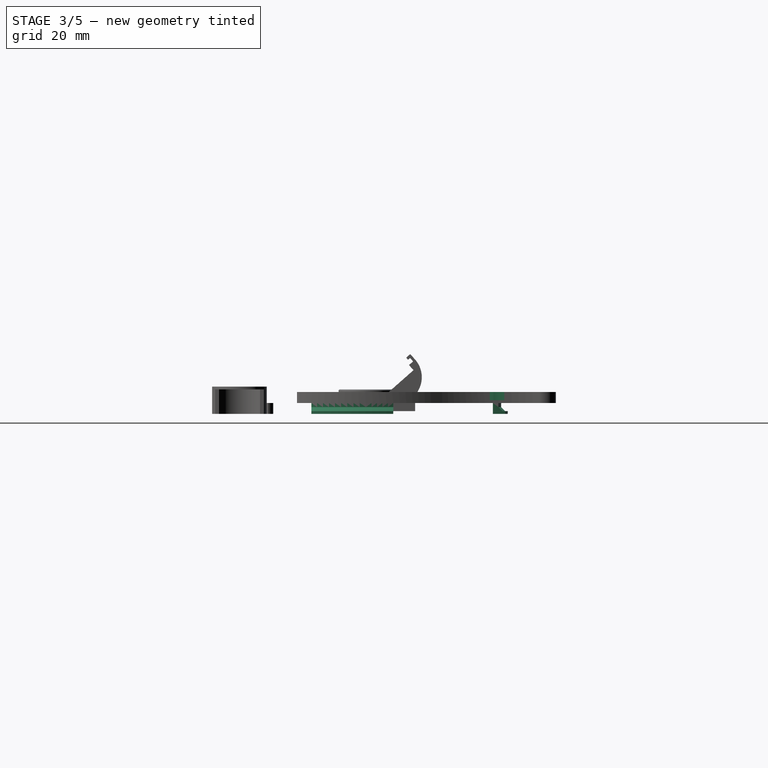
[diagram: stage 3 of 5 — right view after this stage's code; geometry added in this stage tinted green]
FEATURE [Sketcher::SketchObject] Sketch001
  FullyConstrained = true
  MapMode = 5
  Support = -> [XY_Plane]
  expr: Constraints[10] = <<Misure>>.C4
  expr: Constraints[11] = <<Misure>>.B4
  expr: Constraints[18] = <<Misure>>.A4
  expr: Constraints[1] = <<Misure>>.A2
  expr: Constraints[28] = 2 * <<Misure>>.A4 + 0.5
  expr: Constraints[46] = <<Misure>>.B4
  expr: Constraints[49] = <<Misure>>.B4 * 2
  sketch-geometry (17):
    g0: Circle CenterX=0 CenterY=0 CenterZ=0 NormalX=0 NormalY=0 NormalZ=1 AngleXU=0 Radius=49.5
    g1: ArcOfCircle CenterX=0 CenterY=0 CenterZ=0 NormalX=0 NormalY=0 NormalZ=1 AngleXU=0 Radius=47.5 StartAngle=5.84858 EndAngle=6.4953
    g2: ArcOfCircle CenterX=0 CenterY=0 CenterZ=0 NormalX=0 NormalY=0 NormalZ=1 AngleXU=0 Radius=47.5 StartAngle=2.92948 EndAngle=3.5762
    g3: LineSegment StartX=-48.4794 StartY=10 StartZ=0 EndX=48.4794 EndY=10 EndZ=0
    g4: LineSegment StartX=-45.2797 StartY=-20 StartZ=0 EndX=45.2797 EndY=-20 EndZ=0
    g5: GeomPoint X=-49.5 Y=0 Z=0
    g6: GeomPoint X=-47.5 Y=0 Z=0
    g7: ArcOfCircle CenterX=0 CenterY=0 CenterZ=0 NormalX=0 NormalY=0 NormalZ=1 AngleXU=0 Radius=51.9078 StartAngle=2.94773 EndAngle=3.53712
    g8: LineSegment StartX=-46.4354 StartY=10 StartZ=0 EndX=-50.9354 EndY=10 EndZ=0
    g9: LineSegment StartX=-43.0842 StartY=-20 StartZ=0 EndX=-47.9001 EndY=-20 EndZ=0
    g10: ArcOfCircle CenterX=0 CenterY=0 CenterZ=0 NormalX=0 NormalY=0 NormalZ=1 AngleXU=0 Radius=51.9078 StartAngle=5.88765 EndAngle=6.47705
    g11: LineSegment StartX=43.0842 StartY=-20 StartZ=0 EndX=47.9001 EndY=-20 EndZ=0
    g12: LineSegment StartX=46.4354 StartY=10 StartZ=0 EndX=50.9354 EndY=10 EndZ=0
    g13: ArcOfCircle CenterX=0 CenterY=0 CenterZ=0 NormalX=0 NormalY=0 NormalZ=1 AngleXU=0 Radius=47.5 StartAngle=1.35868 EndAngle=1.78291
    g14: ArcOfCircle CenterX=0 CenterY=0 CenterZ=0 NormalX=0 NormalY=0 NormalZ=1 AngleXU=0 Radius=51.9078 StartAngle=1.37694 EndAngle=1.76466
    g15: LineSegment StartX=-10 StartY=46.4354 StartZ=0 EndX=-10 EndY=50.9354 EndZ=0
    g16: LineSegment StartX=10 StartY=46.4354 StartZ=0 EndX=10 EndY=50.9354 EndZ=0
  constraints (50):
    c: Coincident(g0,g-1)
    c: Diameter(g0) = 99
    c: Coincident(g1,g0)
    c: Coincident(g2,g1)
    c: PointOnObject(g3,g0)
    c: PointOnObject(g3,g0)
    c: Horizontal(g3)
    c: PointOnObject(g4,g0)
    c: PointOnObject(g4,g0)
    c: Horizontal(g4)
    c: DistanceY(g4,g1) = 20
    c: DistanceY(g1,g3) = 10
    c: PointOnObject(g1,g3)
    c: PointOnObject(g1,g4)
    c: PointOnObject(g2,g3)
    c: PointOnObject(g2,g4)
    c: PointOnObject(g5,g0)
    c: PointOnObject(g6,g2)
    c: DistanceX(g5,g6) = 2
    c: PointOnObject(g5,g-1)
    c: PointOnObject(g6,g-1)
    c: Coincident(g8,g2)
    c: Coincident(g8,g7)
    c: Coincident(g9,g2)
    c: Coincident(g9,g7)
    c: Horizontal(g9)
    c: Horizontal(g8)
    c: Coincident(g7,g1)
    c: DistanceX(g8,g8) = 4.5
    c: Coincident(g10,g1)
    c: Coincident(g11,g1)
    c: Coincident(g11,g10)
    c: Coincident(g12,g1)
    c: Coincident(g12,g10)
    c: Horizontal(g12)
    c: Horizontal(g11)
    c: Equal(g12,g8)
    c: Equal(g2,g1)
    c: Coincident(g13,g1)
    c: Coincident(g14,g1)
    c: Coincident(g15,g13)
    c: Coincident(g15,g14)
    c: Vertical(g15)
    c: Coincident(g16,g13)
    c: Coincident(g16,g14)
    c: Vertical(g16)
    c: DistanceX(g13,g1) = 10
    c: Equal(g13,g2)
    c: Equal(g14,g7)
    c: DistanceX(g13,g13) = 20
FEATURE [PartDesign::Pad] Pad001
  BaseFeature = -> Pad
  Direction = (0,0,1)
  Length = 4
  Length2 = 10
  Profile = -> Sketch001
  ReferenceAxis = -> Sketch001 [N_Axis]
  Refine = true
  Reversed = true
  Type = 0
FEATURE [Sketcher::SketchObject] Sketch002
  FullyConstrained = true
  MapMode = 5
  Placement = pos=(0,0,0) rot=(1,0,0;1.5708rad)
  Support = -> [XZ_Plane]
  expr: Constraints[10] = <<Misure>>.B2
  expr: Constraints[16] = <<Misure>>.B2 * 0.5
  expr: Constraints[8] = <<Misure>>.A2 / 2
  sketch-geometry (6):
    g0: LineSegment StartX=49.5 StartY=0 StartZ=0 EndX=59.5 EndY=0 EndZ=0
    g1: LineSegment StartX=59.5 StartY=0 StartZ=0 EndX=59.5 EndY=-3 EndZ=0
    g2: LineSegment StartX=59.5 StartY=-3 StartZ=0 EndX=51 EndY=-3 EndZ=0
    g3: LineSegment StartX=49.5 StartY=-1.5 StartZ=0 EndX=49.5 EndY=0 EndZ=0
    g4: GeomPoint X=49.5 Y=-3 Z=0
    g5: LineSegment StartX=49.5 StartY=-1.5 StartZ=0 EndX=51 EndY=-3 EndZ=0
  constraints (17):
    c: Coincident(g0,g1)
    c: Coincident(g1,g2)
    c: Coincident(g3,g0)
    c: Horizontal(g0)
    c: Horizontal(g2)
    c: Vertical(g1)
    c: Vertical(g3)
    c: PointOnObject(g0,g-1)
    c: DistanceX(g-1,g0) = 49.5
    c: DistanceX(g0,g0) = 10
    c: DistanceY(g1,g1) = 3
    c: PointOnObject(g4,g3)
    c: PointOnObject(g4,g2)
    c: Coincident(g5,g3)
    c: Coincident(g5,g2)
    c: Angle(g5,g3) = 2.35619
    c: DistanceY(g4,g3) = 1.5
FEATURE [PartDesign::Groove] Groove
  Angle = 360
  Axis = (0,-2e-16,1)
  Base = (0,0,0)
  BaseFeature = -> Pad001
  Profile = -> Sketch002
  ReferenceAxis = -> Sketch002 [V_Axis]
  Refine = true
FEATURE [Sketcher::SketchObject] Sketch003  label="Touchs"
  AttachmentOffset = pos=(0,0,4) rot=(0,0,1;0rad)
  FullyConstrained = true
  MapMode = 5
  Placement = pos=(0,0,4) rot=(0,0,1;0rad)
  Support = -> [XY_Plane]
  expr: Constraints[0] = <<Misure>>.A2 + <<Misure>>.A6 + <<Misure>>.A4 * 2 + <<Misure>>.E2 * 2
  expr: Constraints[18] = <<Misure>>.A6
  expr: Constraints[41] = <<Misure>>.F2 + <<Misure>>.A6
  expr: Constraints[45] = <<Misure>>.H2
  expr: Constraints[53] = <<Misure>>.G2 + <<Misure>>.A6
  sketch-geometry (29):
    g0: Circle CenterX=53.1249 CenterY=40 CenterZ=0 NormalX=0 NormalY=0 NormalZ=1 AngleXU=0 Radius=10
    g1: Circle CenterX=81.481 CenterY=39.9936 CenterZ=0 NormalX=0 NormalY=0 NormalZ=1 AngleXU=0 Radius=10
    g2: Circle CenterX=64.1403 CenterY=17.5576 CenterZ=0 NormalX=0 NormalY=0 NormalZ=1 AngleXU=0 Radius=10
    g3: Circle CenterX=90.4903 CenterY=7.08148 CenterZ=0 NormalX=0 NormalY=0 NormalZ=1 AngleXU=0 Radius=10
    g4: Circle CenterX=66.0908 CenterY=-7.36616 CenterZ=0 NormalX=0 NormalY=0 NormalZ=1 AngleXU=0 Radius=10
    g5: Circle CenterX=86.7105 CenterY=-26.8314 CenterZ=0 NormalX=0 NormalY=0 NormalZ=1 AngleXU=0 Radius=10
    g6: Circle CenterX=58.7006 CenterY=-31.2489 CenterZ=0 NormalX=0 NormalY=0 NormalZ=1 AngleXU=0 Radius=10
    g7: Circle CenterX=-53.1249 CenterY=40 CenterZ=0 NormalX=0 NormalY=0 NormalZ=1 AngleXU=0 Radius=10
    g8: Circle CenterX=-65.299 CenterY=12.5812 CenterZ=0 NormalX=0 NormalY=0 NormalZ=1 AngleXU=0 Radius=10
    g9: Circle CenterX=0 CenterY=0 CenterZ=0 NormalX=0 NormalY=0 NormalZ=1 AngleXU=0 Radius=66.5
    g10: Circle CenterX=0 CenterY=0 CenterZ=0 NormalX=0 NormalY=0 NormalZ=1 AngleXU=0 Radius=90.7669
    g11: LineSegment StartX=-53.1249 StartY=40 StartZ=0 EndX=-65.299 EndY=12.5812 EndZ=0
    g12: LineSegment StartX=53.1249 StartY=40 StartZ=0 EndX=64.1403 EndY=17.5576 EndZ=0
    g13: LineSegment StartX=64.1403 StartY=17.5576 StartZ=0 EndX=66.0908 EndY=-7.36616 EndZ=0
    g14: LineSegment StartX=66.0908 StartY=-7.36616 StartZ=0 EndX=58.7006 EndY=-31.2489 EndZ=0
    g15: LineSegment StartX=86.7105 StartY=-26.8314 StartZ=0 EndX=90.4903 EndY=7.08148 EndZ=0
    g16: LineSegment StartX=90.4903 StartY=7.08148 StartZ=0 EndX=81.481 EndY=39.9936 EndZ=0
    g17: Circle CenterX=-82.9573 CenterY=36.8338 CenterZ=0 NormalX=0 NormalY=0 NormalZ=1 AngleXU=0 Radius=10
    g18: LineSegment StartX=-65.299 StartY=12.5812 StartZ=0 EndX=-82.9573 EndY=36.8338 EndZ=0
    g19: LineSegment StartX=-82.9573 StartY=36.8338 StartZ=0 EndX=-53.1249 EndY=40 EndZ=0
    g20: LineSegment StartX=-53.1249 StartY=40 StartZ=0 EndX=53.1249 EndY=40 EndZ=0
    g21: LineSegment StartX=53.1249 StartY=40 StartZ=0 EndX=81.481 EndY=39.9936 EndZ=0
    g22: LineSegment StartX=64.1403 StartY=17.5576 StartZ=0 EndX=81.481 EndY=39.9936 EndZ=0
    g23: LineSegment StartX=66.0908 StartY=-7.36616 StartZ=0 EndX=90.4903 EndY=7.08148 EndZ=0
    g24: LineSegment StartX=90.4903 StartY=7.08148 StartZ=0 EndX=64.1403 EndY=17.5576 EndZ=0
    g25: Circle CenterX=0 CenterY=0 CenterZ=0 NormalX=0 NormalY=0 NormalZ=1 AngleXU=0 Radius=56.5
    g26: LineSegment StartX=0 StartY=0 StartZ=0 EndX=58.7006 EndY=-31.2489 EndZ=0
    g27: LineSegment StartX=81.481 StartY=39.9936 StartZ=0 EndX=0 EndY=0 EndZ=0
    g28: LineSegment StartX=86.7105 StartY=-26.8314 StartZ=0 EndX=0 EndY=3.6e-15 EndZ=0
  constraints (73):
    c: Diameter(g9) = 133
    c: PointOnObject(g7,g9)
    c: PointOnObject(g8,g9)
    c: PointOnObject(g0,g9)
    c: PointOnObject(g2,g9)
    c: PointOnObject(g4,g9)
    c: PointOnObject(g6,g9)
    c: Coincident(g10,g9)
    c: PointOnObject(g1,g10)
    c: PointOnObject(g3,g10)
    c: PointOnObject(g5,g10)
    c: Equal(g2,g0)
    c: Equal(g4,g6)
    c: Equal(g6,g5)
    c: Equal(g5,g3)
    c: Equal(g3,g1)
    c: Equal(g1,g7)
    c: Equal(g7,g8)
    c: Diameter(g0) = 20
    c: Coincident(g11,g7)
    c: Coincident(g11,g8)
    c: Coincident(g12,g0)
    c: Coincident(g12,g2)
    c: Coincident(g13,g2)
    c: Coincident(g13,g4)
    c: Coincident(g14,g4)
    c: Coincident(g6,g14)
    c: Coincident(g15,g5)
    c: Coincident(g15,g3)
    c: Coincident(g16,g3)
    c: Coincident(g16,g1)
    c: Equal(g14,g13)
    c: Equal(g15,g16)
    c: PointOnObject(g17,g10)
    c: Equal(g17,g7)
    c: Coincident(g18,g8)
    c: Coincident(g18,g17)
    c: Coincident(g19,g17)
    c: Coincident(g19,g7)
    c: Equal(g18,g11)
    c: Equal(g19,g18)
    c: Distance(g11) = 30
    c: Coincident(g20,g7)
    c: Coincident(g20,g0)
    c: Horizontal(g20)
    c: DistanceY(g9,g0) = 40
    c: Equal(g13,g12)
    c: Equal(g4,g2)
    c: Coincident(g21,g0)
    c: Coincident(g21,g1)
    c: Coincident(g22,g2)
    c: Coincident(g22,g1)
    c: Equal(g21,g22)
    c: Distance(g12) = 25
    c: Coincident(g23,g4)
    c: Coincident(g23,g3)
    c: Coincident(g24,g3)
    c: Coincident(g24,g2)
    c: Equal(g23,g24)
    c: Coincident(g9,g-1)
    c: Coincident(g25,g9)
    c: Tangent(g25,g2)
    c: Diameter(g25) = 113
    c: Coincident(g26,g9)
    c: Coincident(g26,g6)
    c: Angle(g26,g-1) = 0.489187  'angle_last'
    c: Coincident(g27,g1)
    c: Coincident(g27,g9)
    c: Coincident(g28,g5)
    c: Coincident(g28,g9)
    c: Angle(g-1,g27) = 0.456287  'angle_top'
    c: Angle(g28,g-1) = 0.300092  'angle_bottom'
    c: Distance(g27) = 90.7669  'radius'
FEATURE [Spreadsheet::Sheet] Spreadsheet  label="Misure"
  cells = A1=Diametro Foro Chitarra(mm); B1=Spessore Legno (mm); C1=Larghezza manico(mm); D1=Spessore manico(mm); E1=Distanza pulsanti da struttura; F1=Distanza Tra pulsanti Pollice; G1=Distanza Tra pulsanti Altre; H1=Delta dal centro; A2=99; B2=3; C2=58; D2=5; E2=5; F2=10; G2=5; H2=40; A4=2; B4=10; C4=20; D4=15; E4=5; A6=20; A8=16.5
FEATURE [Sketcher::SketchObject] Sketch005
  FullyConstrained = true
  MapMode = 5
  Support = -> [XY_Plane001]
  expr: Constraints[10] = <<Misure>>.F2 + <<Misure>>.A6
  expr: Constraints[12] = <<Misure>>.A2 + <<Misure>>.A4 * 2
  expr: Constraints[18] = <<Original>>.Constraints.angle
  expr: Constraints[21] = <<Original>>.Constraints.end
  expr: Constraints[30] = <<Misure>>.D2
  expr: Constraints[8] = <<Misure>>.A2 + <<Misure>>.A6 + <<Misure>>.A4 * 2 + <<Misure>>.E2 * 2
  expr: Constraints[9] = <<Misure>>.H2
  sketch-geometry (19):
    g0: Circle CenterX=0 CenterY=0 CenterZ=0 NormalX=0 NormalY=0 NormalZ=1 AngleXU=0 Radius=66.5
    g1: LineSegment StartX=-65.299 StartY=12.5812 StartZ=0 EndX=-53.1249 EndY=40 EndZ=0
    g2: LineSegment StartX=-53.1249 StartY=40 StartZ=0 EndX=-82.9573 EndY=36.8338 EndZ=0
    g3: LineSegment StartX=-82.9573 StartY=36.8338 StartZ=0 EndX=-65.299 EndY=12.5812 EndZ=0
    g4: Circle CenterX=0 CenterY=0 CenterZ=0 NormalX=0 NormalY=0 NormalZ=1 AngleXU=0 Radius=51.5
    g5: Circle CenterX=-65.299 CenterY=12.5812 CenterZ=0 NormalX=0 NormalY=0 NormalZ=1 AngleXU=0 Radius=15
    g6: ArcOfCircle CenterX=-56.2549 CenterY=-5.25705 CenterZ=0 NormalX=0 NormalY=0 NormalZ=1 AngleXU=0 Radius=5 StartAngle=0.0931798 EndAngle=2.04003
    g7: ArcOfCircle CenterX=-89.0464 CenterY=51.7663 CenterZ=0 NormalX=0 NormalY=0 NormalZ=1 AngleXU=0 Radius=51.5 StartAngle=5.7566 EndAngle=6.51051
    g8: LineSegment StartX=-44.5232 StartY=25.8831 StartZ=0 EndX=0 EndY=0 EndZ=0
    g9: LineSegment StartX=-44.5232 StartY=25.8831 StartZ=0 EndX=-38.8714 EndY=63.3731 EndZ=0
    g10: Circle CenterX=-53.1249 CenterY=40 CenterZ=0 NormalX=0 NormalY=0 NormalZ=1 AngleXU=0 Radius=13.7005
    g11: ArcOfCircle CenterX=-42.6985 CenterY=55.5242 CenterZ=0 NormalX=0 NormalY=0 NormalZ=1 AngleXU=0 Radius=5 StartAngle=4.12096 EndAngle=6.36409
    g12: LineSegment StartX=-95.0836 StartY=28.0046 StartZ=0 EndX=-77.4253 EndY=3.75209 EndZ=0
    g13: LineSegment StartX=-83.8928 StartY=51.8046 StartZ=0 EndX=-53.9794 EndY=53.6739 EndZ=0
    g14: ArcOfCircle CenterX=-82.9573 CenterY=36.8338 CenterZ=0 NormalX=0 NormalY=0 NormalZ=1 AngleXU=0 Radius=15 StartAngle=1.63321 EndAngle=3.77093
    g15: ArcOfCircle CenterX=-53.1249 CenterY=40 CenterZ=0 NormalX=0 NormalY=0 NormalZ=1 AngleXU=0 Radius=13.7005 StartAngle=0.979371 EndAngle=1.63321
    g16: ArcOfCircle CenterX=-65.299 CenterY=12.5812 CenterZ=0 NormalX=0 NormalY=0 NormalZ=1 AngleXU=0 Radius=15 StartAngle=3.77093 EndAngle=5.18163
    g17: ArcOfCircle CenterX=-89.0464 CenterY=51.7663 CenterZ=0 NormalX=0 NormalY=0 NormalZ=1 AngleXU=0 Radius=51.5 StartAngle=5.7566 EndAngle=6.36409
    g18: ArcOfCircle CenterX=0 CenterY=0 CenterZ=0 NormalX=0 NormalY=0 NormalZ=1 AngleXU=0 Radius=51.5 StartAngle=2.61501 EndAngle=3.23477
  constraints (48):
    c: Coincident(g0,g-1)
    c: PointOnObject(g1,g0)
    c: PointOnObject(g1,g0)
    c: Coincident(g2,g1)
    c: Coincident(g3,g2)
    c: Coincident(g3,g1)
    c: Equal(g2,g1)
    c: Equal(g2,g3)
    c: Diameter(g0) = 133
    c: DistanceY(g0,g1) = 40
    c: Distance(g1) = 30
    c: Coincident(g4,g0)
    c: Diameter(g4) = 103
    c: Coincident(g5,g1)
    c: Tangent(g5,g4)
    c: Tangent(g7,g4) = 1.5708
    c: Coincident(g8,g7)
    c: Coincident(g8,g0)
    c: Angle(g-1,g8) = 2.61501
    c: Coincident(g9,g7)
    c: Coincident(g9,g7)
    c: Distance(g9) = 37.9136
    c: Equal(g4,g7)
    c: Coincident(g10,g1)
    c: Tangent(g10,g7)
    c: Tangent(g11,g10) = 1.5708
    c: Tangent(g11,g7) = -1.5708
    c: Tangent(g6,g5) = 1.5708
    c: Tangent(g6,g4) = 1.5708
    c: Equal(g11,g6)
    c: Radius(g11) = 5
    c: Coincident(g14,g2)
    c: Coincident(g15,g1)
    c: Coincident(g15,g13)
    c: Coincident(g15,g11)
    c: Coincident(g16,g1)
    c: Coincident(g16,g12)
    c: Coincident(g16,g6)
    c: Coincident(g17,g7)
    c: Coincident(g17,g11)
    c: Coincident(g18,g0)
    c: Coincident(g18,g17)
    c: Tangent(g12,g5)
    c: Tangent(g13,g10)
    c: Coincident(g18,g6)
    c: Equal(g14,g5)
    c: Tangent(g14,g13) = 1.5708
    c: Tangent(g14,g12) = -1.5708
FEATURE [PartDesign::Pad] Pad003
  Direction = (0,0,1)
  Length = 4
  Length2 = 10
  Profile = -> Sketch005
  ReferenceAxis = -> Sketch005 [N_Axis]
  Refine = true
  Type = 0
  expr: Length = <<Misure>>.D2 - 1
FEATURE [PartDesign::Body] Body002  label="Right"
  Group = -> [Sketch004,Pad002,Binder,Pocket001,Binder003,Hole001,Binder004,Pocket002,Binder005,Pocket003]
  Origin = -> Origin002
  Tip = -> Pocket003
FEATURE [PartDesign::Pocket] Pocket005
  BaseFeature = -> Groove
  Direction = (0,0,-1)
  Length = 3
  Length2 = 5
  Profile = -> Sketch006
  ReferenceAxis = -> Sketch006 [N_Axis]
  Refine = true
  Type = 0
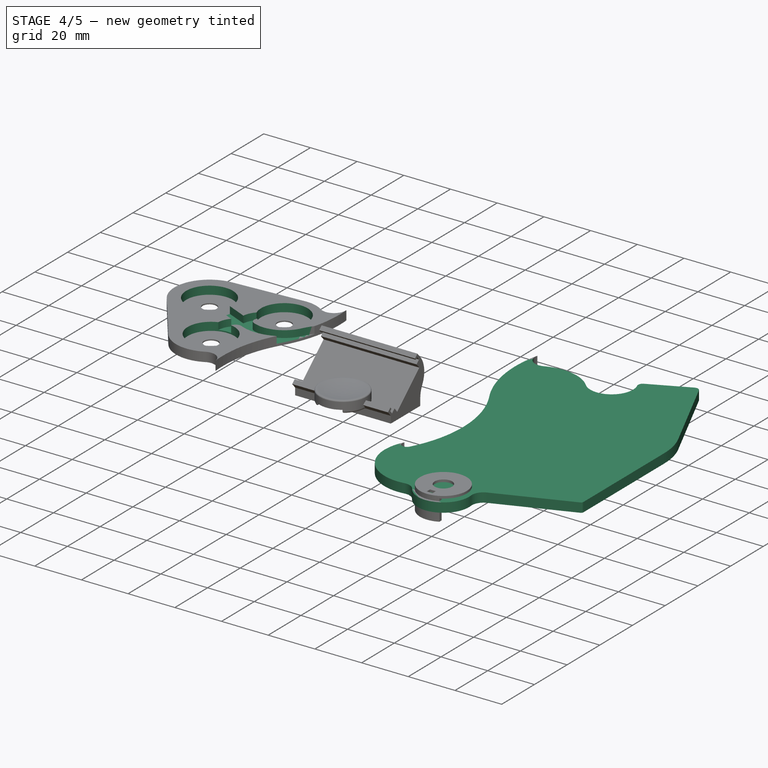
[diagram: stage 4 of 5 — iso view after this stage's code; geometry added in this stage tinted green]
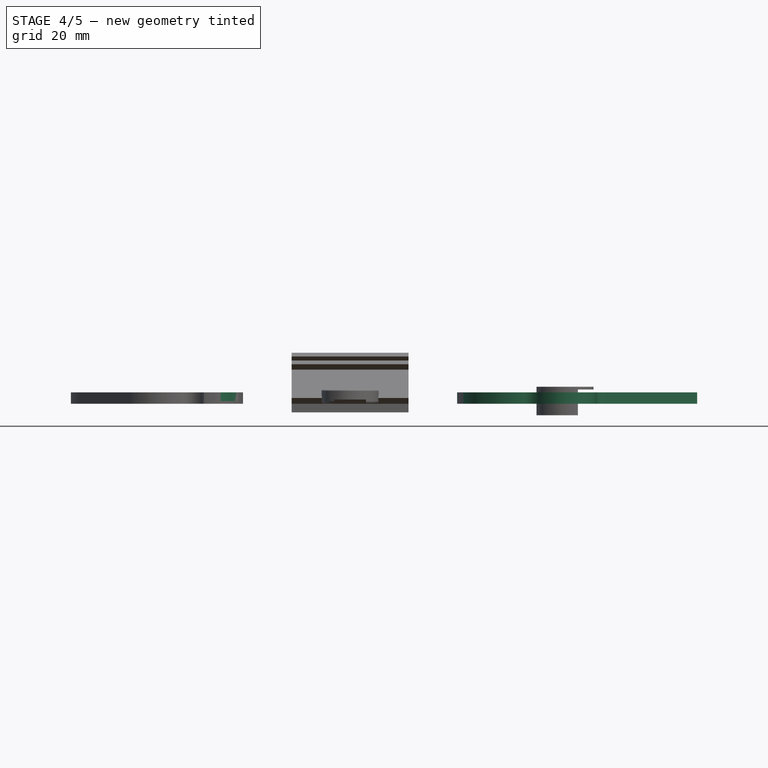
[diagram: stage 4 of 5 — front view after this stage's code; geometry added in this stage tinted green]
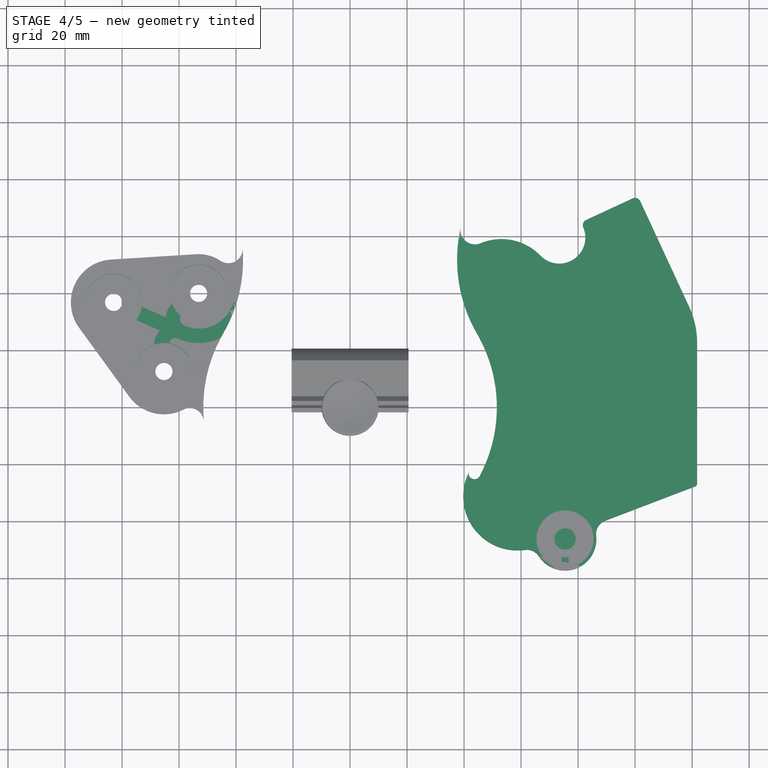
[diagram: stage 4 of 5 — top view after this stage's code; geometry added in this stage tinted green]
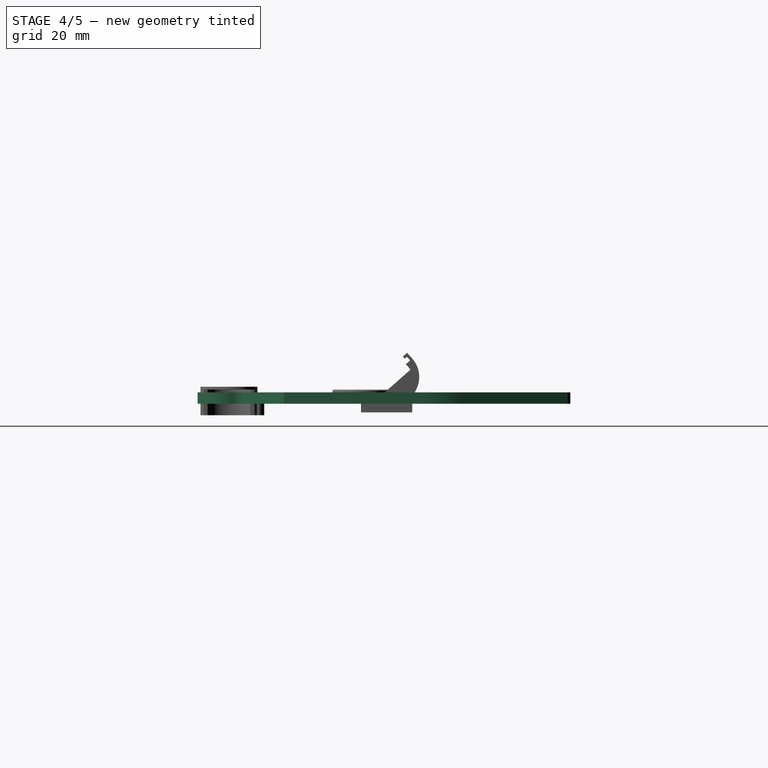
[diagram: stage 4 of 5 — right view after this stage's code; geometry added in this stage tinted green]
FEATURE [App::Link] Link  label="Touchs_link"
  LinkTransform = true
  LinkedObject = -> Body [Sketch003.]
FEATURE [PartDesign::SubShapeBinder] Binder
  BindCopyOnChange = 0
  BindMode = 0
  ClaimChildren = false
  Context = -> Body002 [Binder.]
  Fuse = false
  MakeFace = true
  OffsetFill = false
  OffsetIntersection = false
  OffsetJoinType = 0
  OffsetOpenResult = false
  PartialLoad = false
  Refine = true
  Relative = true
  Support = -> [Link]
  _Version = 2
FEATURE [PartDesign::SubShapeBinder] Binder001
  BindCopyOnChange = 0
  BindMode = 0
  ClaimChildren = false
  Context = -> Body001 [Binder001.]
  Fuse = false
  MakeFace = true
  OffsetFill = false
  OffsetIntersection = false
  OffsetJoinType = 0
  OffsetOpenResult = false
  PartialLoad = false
  Refine = true
  Relative = true
  Support = -> [Link]
  _Version = 2
FEATURE [PartDesign::Pocket] Pocket
  BaseFeature = -> Pad003
  Direction = (0,0,-1)
  Length = 3.5
  Length2 = 5
  Profile = -> Binder001
  Refine = true
  Type = 0
  expr: Length = <<Misure>>.D2 - 1.5
FEATURE [PartDesign::SubShapeBinder] Binder002
  BindCopyOnChange = 0
  BindMode = 0
  ClaimChildren = false
  Context = -> Body001 [Binder002.]
  Fuse = false
  MakeFace = true
  OffsetFill = false
  OffsetIntersection = false
  OffsetJoinType = 0
  OffsetOpenResult = false
  PartialLoad = false
  Refine = true
  Relative = true
  Support = -> [Link]
  _Version = 2
FEATURE [PartDesign::Hole] Hole
  BaseFeature = -> Pocket
  CustomThreadClearance = 0
  Depth = 25
  DepthType = 0
  Diameter = 6
  DrillForDepth = false
  DrillPoint = 1
  DrillPointAngle = 118
  HoleCutCountersinkAngle = 90
  HoleCutCustomValues = false
  HoleCutDepth = 0
  HoleCutDiameter = 6.1
  HoleCutType = 0
  ModelThread = false
  Profile = -> Binder002
  Refine = true
  Tapered = false
  TaperedAngle = 90
  ThreadClass = 0
  ThreadDepth = 25
  ThreadDepthType = 0
  ThreadDirection = 0
  ThreadFit = 0
  ThreadSize = 0
  ThreadType = 0
  Threaded = false
  UseCustomThreadClearance = false
FEATURE [PartDesign::SubShapeBinder] Binder003
  BindCopyOnChange = 0
  BindMode = 0
  ClaimChildren = false
  Context = -> Body002 [Binder003.]
  Fuse = false
  MakeFace = true
  OffsetFill = false
  OffsetIntersection = false
  OffsetJoinType = 0
  OffsetOpenResult = false
  PartialLoad = false
  Refine = true
  Relative = true
  Support = -> [Link]
  _Version = 2
FEATURE [Sketcher::SketchObject] Sketch007  label="Electronics"
  ExternalGeometry = -> [Sketch003]
  FullyConstrained = true
  MapMode = 5
  Support = -> [XY_Plane]
  expr: Constraints[21] = <<Misure>>.A6 / 2 + <<Misure>>.A4
  expr: Constraints[41] = <<Misure>>.A6 + <<Misure>>.G2
  sketch-geometry (19):
    g0: LineSegment StartX=102.767 StartY=18.1686 StartZ=0 EndX=120.767 EndY=18.1686 EndZ=0
    g1: LineSegment StartX=120.767 StartY=18.1686 StartZ=0 EndX=120.767 EndY=-26.8314 EndZ=0
    g2: LineSegment StartX=120.767 StartY=-26.8314 StartZ=0 EndX=102.767 EndY=-26.8314 EndZ=0
    g3: LineSegment StartX=102.767 StartY=-26.8314 StartZ=0 EndX=102.767 EndY=18.1686 EndZ=0
    g4: Circle CenterX=75.4272 CenterY=-46.2978 CenterZ=0 NormalX=0 NormalY=0 NormalZ=1 AngleXU=0 Radius=10
    g5: LineSegment StartX=83.6645 StartY=63.895 StartZ=0 EndX=99.9987 EndY=71.4576 EndZ=0
    g6: LineSegment StartX=99.9987 StartY=71.4576 StartZ=0 EndX=117.224 EndY=34.2517 EndZ=0
    g7: LineSegment StartX=117.224 StartY=34.2517 StartZ=0 EndX=100.89 EndY=26.6892 EndZ=0
    g8: LineSegment StartX=100.89 StartY=26.6892 StartZ=0 EndX=83.6645 EndY=63.895 EndZ=0
    g9: Circle CenterX=0 CenterY=0 CenterZ=0 NormalX=0 NormalY=0 NormalZ=1 AngleXU=0 Radius=102.767
    g10: LineSegment StartX=81.481 StartY=39.9936 StartZ=0 EndX=92.2533 EndY=45.281 EndZ=0
    g11: LineSegment StartX=83.6645 StartY=63.895 StartZ=0 EndX=93.3292 EndY=85.863 EndZ=0
    g12: LineSegment StartX=93.3292 StartY=85.863 StartZ=0 EndX=99.9987 EndY=71.4576 EndZ=0
    g13: ArcOfCircle CenterX=0 CenterY=0 CenterZ=0 NormalX=0 NormalY=0 NormalZ=1 AngleXU=0 Radius=104.361 StartAngle=0.174986 EndAngle=0.258613
    g14: Circle CenterX=75.4272 CenterY=-46.2978 CenterZ=0 NormalX=0 NormalY=0 NormalZ=1 AngleXU=0 Radius=12.5
    g15: ArcOfCircle CenterX=75.4272 CenterY=-46.2978 CenterZ=0 NormalX=0 NormalY=0 NormalZ=1 AngleXU=0 Radius=10 StartAngle=1.97787 EndAngle=7.75975
    g16: ArcOfCircle CenterX=73.8694 CenterY=-36.4199 CenterZ=0 NormalX=0 NormalY=0 NormalZ=1 AngleXU=0 Radius=2.5 StartAngle=0.031094 EndAngle=3.42334
    g17: LineSegment StartX=58.7006 StartY=-31.2489 StartZ=0 EndX=71.468 EndY=-37.1149 EndZ=0
    g18: LineSegment StartX=76.3682 StartY=-36.3421 StartZ=0 EndX=86.7105 EndY=-26.8314 EndZ=0
  constraints (53):
    c: Coincident(g0,g1)
    c: Coincident(g1,g2)
    c: Coincident(g2,g3)
    c: Coincident(g3,g0)
    c: Horizontal(g0)
    c: Horizontal(g2)
    c: Vertical(g1)
    c: Vertical(g3)
    c: Coincident(g5,g6)
    c: Coincident(g6,g7)
    c: Coincident(g7,g8)
    c: Coincident(g8,g5)
    c: Coincident(g9,g-1)
    c: DistanceY(g1,g1) = 45
    c: DistanceX(g0,g0) = 18
    c: Perpendicular(g8,g7)
    c: Perpendicular(g6,g5)
    c: Perpendicular(g8,g5)
    c: Distance(g8) = 41
    c: Coincident(g10,g-3)
    c: Perpendicular(g9,g10)
    c: Distance(g10) = 12
    c: Tangent(g3,g9)
    c: Tangent(g8,g9)
    c: PointOnObject(g10,g9)
    c: Coincident(g11,g5)
    c: Distance(g11) = 24
    c: Coincident(g12,g11)
    c: Coincident(g12,g5)
    c: Perpendicular(g5,g12)
    c: Angle(g5,g11) = 0.722734
    c: Distance(g5) = 18
    c: PointOnObject(g-4,g2)
    c: Coincident(g13,g9)
    c: Coincident(g13,g0)
    c: Coincident(g13,g7)
    c: Distance(g7,g10) = 20.5
    c: Diameter(g4) = 20
    c: Coincident(g14,g4)
    c: Tangent(g14,g-4)
    c: Tangent(g14,g-5)
    c: Diameter(g14) = 25
    c: Coincident(g15,g4)
    c: PointOnObject(g15,g4)
    c: PointOnObject(g16,g4)
    c: Coincident(g16,g15)
    c: Coincident(g16,g15)
    c: Tangent(g16,g14)
    c: Coincident(g17,g-5)
    c: Coincident(g17,g15)
    c: Coincident(g18,g15)
    c: Coincident(g18,g-4)
    c: Equal(g17,g18)
FEATURE [Sketcher::SketchObject] Sketch006  label="Grooves"
  AttachmentOffset = pos=(0,0,4) rot=(0,0,1;0rad)
  ExternalGeometry = -> [Sketch003,Sketch007]
  FullyConstrained = true
  MapMode = 5
  Placement = pos=(0,0,4) rot=(0,0,1;0rad)
  Support = -> [XY_Plane]
  sketch-geometry (84):
    g0: LineSegment StartX=-21.7441 StartY=47 StartZ=0 EndX=21.7441 EndY=47 EndZ=0
    g1: ArcOfCircle CenterX=-53.1249 CenterY=40 CenterZ=0 NormalX=0 NormalY=0 NormalZ=1 AngleXU=0 Radius=12.5 StartAngle=4.29453 EndAngle=5.8244
    g2: ArcOfCircle CenterX=-53.1249 CenterY=40 CenterZ=0 NormalX=0 NormalY=0 NormalZ=1 AngleXU=0 Radius=17.5 StartAngle=4.29453 EndAngle=5.8244
    g3: LineSegment StartX=-21.7441 StartY=42 StartZ=0 EndX=21.7441 EndY=42 EndZ=0
    g4: ArcOfCircle CenterX=-21.7441 CenterY=24.5 CenterZ=0 NormalX=0 NormalY=0 NormalZ=1 AngleXU=0 Radius=17.5 StartAngle=1.5708 EndAngle=2.68281
    g5: ArcOfCircle CenterX=-21.7441 CenterY=24.5 CenterZ=0 NormalX=0 NormalY=0 NormalZ=1 AngleXU=0 Radius=22.5 StartAngle=1.5708 EndAngle=2.68281
    g6: ArcOfCircle CenterX=-61.241 CenterY=21.7208 CenterZ=0 NormalX=0 NormalY=0 NormalZ=1 AngleXU=0 Radius=2.5 StartAngle=1.15294 EndAngle=2.84906
    g7: ArcOfCircle CenterX=-61.241 CenterY=21.7208 CenterZ=0 NormalX=0 NormalY=0 NormalZ=1 AngleXU=0 Radius=7.5 StartAngle=1.15294 EndAngle=3.10813
    g8: ArcOfCircle CenterX=-57.1829 CenterY=30.8604 CenterZ=0 NormalX=0 NormalY=0 NormalZ=1 AngleXU=0 Radius=2.5 StartAngle=2.5984 EndAngle=4.29453
    g9: ArcOfCircle CenterX=-57.1829 CenterY=30.8604 CenterZ=0 NormalX=0 NormalY=0 NormalZ=1 AngleXU=0 Radius=7.5 StartAngle=2.33934 EndAngle=4.29453
    g10: LineSegment StartX=-58.1974 StartY=28.5755 StartZ=0 EndX=-73.0934 EndY=35.1895 EndZ=0
    g11: LineSegment StartX=-60.2265 StartY=24.0057 StartZ=0 EndX=-75.1224 EndY=30.6197 EndZ=0
    g12: LineSegment StartX=-21.7441 StartY=42 StartZ=0 EndX=-21.7441 EndY=47 EndZ=0
    g13: LineSegment StartX=-75.1224 StartY=30.6197 StartZ=0 EndX=-73.0934 EndY=35.1895 EndZ=0
    g14: ArcOfCircle CenterX=21.7441 CenterY=83.287 CenterZ=0 NormalX=0 NormalY=0 NormalZ=1 AngleXU=0 Radius=41.287 StartAngle=4.71239 EndAngle=5.33966
    g15: ArcOfCircle CenterX=21.7441 CenterY=83.287 CenterZ=0 NormalX=0 NormalY=0 NormalZ=1 AngleXU=0 Radius=36.287 StartAngle=4.71239 EndAngle=5.33966
    g16: ArcOfCircle CenterX=53.1249 CenterY=40 CenterZ=0 NormalX=0 NormalY=0 NormalZ=1 AngleXU=0 Radius=12.1781 StartAngle=6.28296 EndAngle=8.48125
    g17: ArcOfCircle CenterX=53.1249 CenterY=40 CenterZ=0 NormalX=0 NormalY=0 NormalZ=1 AngleXU=0 Radius=17.1781 StartAngle=6.28296 EndAngle=8.48125
    g18: LineSegment StartX=53.1249 StartY=40 StartZ=0 EndX=45.9771 EndY=49.8598 EndZ=0
    g19: LineSegment StartX=-59.3231 StartY=32.1526 StartZ=0 EndX=-62.3961 EndY=36.2524 EndZ=0
    g20: LineSegment StartX=-63.6348 StartY=22.4418 StartZ=0 EndX=-68.7368 EndY=21.9717 EndZ=0
    g21: ArcOfCircle CenterX=-57.1829 CenterY=30.8604 CenterZ=0 NormalX=0 NormalY=0 NormalZ=1 AngleXU=0 Radius=7.5 StartAngle=2.33934 EndAngle=3.06357
    g22: ArcOfCircle CenterX=-61.241 CenterY=21.7208 CenterZ=0 NormalX=0 NormalY=0 NormalZ=1 AngleXU=0 Radius=7.5 StartAngle=2.3839 EndAngle=3.10813
    g23: LineSegment StartX=-75.1224 StartY=30.6197 StartZ=0 EndX=-66.6891 EndY=26.8752 EndZ=0
    g24: LineSegment StartX=-64.6601 StartY=31.445 StartZ=0 EndX=-73.0934 EndY=35.1895 EndZ=0
    g25: LineSegment StartX=53.1249 StartY=40 StartZ=0 EndX=81.481 EndY=39.9936 EndZ=0
    g26: LineSegment StartX=64.1403 StartY=17.5576 StartZ=0 EndX=81.481 EndY=39.9936 EndZ=0
    g27: LineSegment StartX=90.4903 StartY=7.08148 StartZ=0 EndX=64.1403 EndY=17.5576 EndZ=0
    g28: LineSegment StartX=86.7105 StartY=-26.8314 StartZ=0 EndX=66.0908 EndY=-7.36616 EndZ=0
    g29: ArcOfCircle CenterX=90.4903 CenterY=7.08148 CenterZ=0 NormalX=0 NormalY=0 NormalZ=1 AngleXU=0 Radius=11.1781 StartAngle=2.76318 EndAngle=4.71239
    g30: ArcOfCircle CenterX=64.1403 CenterY=17.5576 CenterZ=0 NormalX=0 NormalY=0 NormalZ=1 AngleXU=0 Radius=17.1781 StartAngle=5.90477 EndAngle=7.19599
    g31: ArcOfCircle CenterX=81.481 CenterY=39.9936 CenterZ=0 NormalX=0 NormalY=0 NormalZ=1 AngleXU=0 Radius=11.1781 StartAngle=3.14137 EndAngle=4.05439
    g32: ArcOfCircle CenterX=81.481 CenterY=39.9936 CenterZ=0 NormalX=0 NormalY=0 NormalZ=1 AngleXU=0 Radius=16.1781 StartAngle=3.14137 EndAngle=4.05439
    g33: ArcOfCircle CenterX=64.1403 CenterY=17.5576 CenterZ=0 NormalX=0 NormalY=0 NormalZ=1 AngleXU=0 Radius=12.1781 StartAngle=5.90477 EndAngle=7.19599
    g34: ArcOfCircle CenterX=90.4903 CenterY=7.08148 CenterZ=0 NormalX=0 NormalY=0 NormalZ=1 AngleXU=0 Radius=16.1781 StartAngle=2.76318 EndAngle=4.71239
    g35: ArcOfCircle CenterX=63.1249 CenterY=39.9977 CenterZ=0 NormalX=0 NormalY=0 NormalZ=1 AngleXU=0 Radius=2.17807 StartAngle=6.28296 EndAngle=7.96288
    g36: ArcOfCircle CenterX=63.1249 CenterY=39.9977 CenterZ=0 NormalX=0 NormalY=0 NormalZ=1 AngleXU=0 Radius=7.17807 StartAngle=6.28296 EndAngle=8.22085
    g37: ArcOfCircle CenterX=73.4328 CenterY=13.8631 CenterZ=0 NormalX=0 NormalY=0 NormalZ=1 AngleXU=0 Radius=2.17807 StartAngle=5.90477 EndAngle=7.58469
    g38: ArcOfCircle CenterX=73.4328 CenterY=13.8631 CenterZ=0 NormalX=0 NormalY=0 NormalZ=1 AngleXU=0 Radius=7.17807 StartAngle=5.90477 EndAngle=7.84266
    g39: ArcOfCircle CenterX=81.1978 CenterY=10.776 CenterZ=0 NormalX=0 NormalY=0 NormalZ=1 AngleXU=0 Radius=1.17807 StartAngle=1.13344 EndAngle=2.76318
    g40: ArcOfCircle CenterX=81.1978 CenterY=10.776 CenterZ=0 NormalX=0 NormalY=0 NormalZ=1 AngleXU=0 Radius=6.17807 StartAngle=0.87834 EndAngle=2.76318
    g41: LineSegment StartX=90.4903 StartY=-4.09659 StartZ=0 EndX=102.767 EndY=-4.09659 EndZ=0
    g42: LineSegment StartX=90.4903 StartY=-9.09659 StartZ=0 EndX=102.767 EndY=-9.09659 EndZ=0
    g43: ArcOfCircle CenterX=53.1249 CenterY=40 CenterZ=0 NormalX=0 NormalY=0 NormalZ=1 AngleXU=0 Radius=12.1781 StartAngle=0.629938 EndAngle=2.19807
    g44: ArcOfCircle CenterX=63.1249 CenterY=39.9977 CenterZ=0 NormalX=0 NormalY=0 NormalZ=1 AngleXU=0 Radius=7.17807 StartAngle=1.593 EndAngle=1.93766
    g45: ArcOfCircle CenterX=73.4328 CenterY=13.8631 CenterZ=0 NormalX=0 NormalY=0 NormalZ=1 AngleXU=0 Radius=7.17807 StartAngle=1.21481 EndAngle=1.55947
    g46: ArcOfCircle CenterX=81.1978 CenterY=10.776 CenterZ=0 NormalX=0 NormalY=0 NormalZ=1 AngleXU=0 Radius=6.17807 StartAngle=0.87834 EndAngle=1.553
    g47: GeomPoint X=102.767 Y=5.16856 Z=0
    g48: ArcOfCircle CenterX=102.767 CenterY=3.58054 CenterZ=0 NormalX=0 NormalY=0 NormalZ=1 AngleXU=0 Radius=1.58802 StartAngle=1.5708 EndAngle=2.8638
    g49: ArcOfCircle CenterX=90.4903 CenterY=7.08148 CenterZ=0 NormalX=0 NormalY=0 NormalZ=1 AngleXU=0 Radius=11.1781 StartAngle=4.71239 EndAngle=6.00539
    g50: ArcOfCircle CenterX=66.0908 CenterY=-7.36616 CenterZ=0 NormalX=0 NormalY=0 NormalZ=1 AngleXU=0 Radius=12.1781 StartAngle=5.52658 EndAngle=6.8178
    g51: ArcOfCircle CenterX=86.7105 CenterY=-26.8314 CenterZ=0 NormalX=0 NormalY=0 NormalZ=1 AngleXU=0 Radius=12.1781 StartAngle=0.440858 EndAngle=2.38499
    g52: ArcOfCircle CenterX=102.767 CenterY=-19.2555 CenterZ=0 NormalX=0 NormalY=0 NormalZ=1 AngleXU=0 Radius=5.5759 StartAngle=3.58245 EndAngle=4.71239
    g53: ArcOfCircle CenterX=73.3625 CenterY=-14.2307 CenterZ=0 NormalX=0 NormalY=0 NormalZ=1 AngleXU=0 Radius=2.17807 StartAngle=3.84666 EndAngle=5.52658
    g54: ArcOfCircle CenterX=79.4388 CenterY=-19.9669 CenterZ=0 NormalX=0 NormalY=0 NormalZ=1 AngleXU=0 Radius=2.17807 StartAngle=2.38499 EndAngle=4.0649
    g55: LineSegment StartX=65.4373 StartY=-23.8586 StartZ=0 EndX=67.0531 EndY=-22.6799 EndZ=0
    g56: LineSegment StartX=67.7948 StartY=-27.0901 StartZ=0 EndX=69.4105 EndY=-25.9114 EndZ=0
    g57: LineSegment StartX=58.7006 StartY=-31.2489 StartZ=0 EndX=68.2318 EndY=-24.2957 EndZ=0
    g58: LineSegment StartX=68.2318 StartY=-24.2957 StartZ=0 EndX=67.0531 EndY=-22.6799 EndZ=0
    g59: LineSegment StartX=68.2318 StartY=-24.2957 StartZ=0 EndX=69.4105 EndY=-25.9114 EndZ=0
    g60: ArcOfCircle CenterX=33.2976 CenterY=23.591 CenterZ=0 NormalX=0 NormalY=0 NormalZ=1 AngleXU=0 Radius=57.2751 StartAngle=5.34265 EndAngle=5.52658
    g61: ArcOfCircle CenterX=33.2976 CenterY=23.591 CenterZ=0 NormalX=0 NormalY=0 NormalZ=1 AngleXU=0 Radius=61.2751 StartAngle=5.34265 EndAngle=5.52658
    g62: ArcOfCircle CenterX=73.3625 CenterY=-14.2307 CenterZ=0 NormalX=0 NormalY=0 NormalZ=1 AngleXU=0 Radius=6.17807 StartAngle=3.64174 EndAngle=5.52658
    g63: ArcOfCircle CenterX=79.4388 CenterY=-19.9669 CenterZ=0 NormalX=0 NormalY=0 NormalZ=1 AngleXU=0 Radius=6.17807 StartAngle=2.38499 EndAngle=4.26982
    g64: ArcOfCircle CenterX=73.3625 CenterY=-14.2307 CenterZ=0 NormalX=0 NormalY=0 NormalZ=1 AngleXU=0 Radius=6.17807 StartAngle=3.64174 EndAngle=4.2641
    g65: ArcOfCircle CenterX=79.4388 CenterY=-19.9669 CenterZ=0 NormalX=0 NormalY=0 NormalZ=1 AngleXU=0 Radius=6.17807 StartAngle=3.54952 EndAngle=4.26982
    g66: ArcOfCircle CenterX=33.2976 CenterY=23.591 CenterZ=0 NormalX=0 NormalY=0 NormalZ=1 AngleXU=0 Radius=57.2751 StartAngle=5.34265 EndAngle=5.42362
    g67: ArcOfCircle CenterX=33.2976 CenterY=23.591 CenterZ=0 NormalX=0 NormalY=0 NormalZ=1 AngleXU=0 Radius=61.2751 StartAngle=5.34265 EndAngle=5.43383
    g68: LineSegment StartX=62.8881 StartY=42.1629 StartZ=0 EndX=60.5501 EndY=46.6981 EndZ=0
    g69: LineSegment StartX=74.0123 StartY=15.9627 StartZ=0 EndX=73.5141 EndY=21.0408 EndZ=0
    g70: LineSegment StartX=81.6967 StartY=11.8432 StartZ=0 EndX=85.142 EndY=15.5311 EndZ=0
    g71: LineSegment StartX=76.793 StartY=-25.5497 StartZ=0 EndX=78.125 EndY=-21.7041 EndZ=0
    g72: LineSegment StartX=67.9411 StartY=-17.1935 StartZ=0 EndX=71.7037 EndY=-15.6423 EndZ=0
    g73: LineSegment StartX=67.7948 StartY=-27.0901 StartZ=0 EndX=65.4373 EndY=-23.8586 EndZ=0
    g74: LineSegment StartX=102.767 StartY=5.16856 StartZ=0 EndX=102.767 EndY=-24.8314 EndZ=0
    g75: ArcOfCircle CenterX=71.481 CenterY=39.9958 CenterZ=0 NormalX=0 NormalY=0 NormalZ=1 AngleXU=0 Radius=1.17807 StartAngle=1.51163 EndAngle=3.14137
    g76: ArcOfCircle CenterX=71.481 CenterY=39.9958 CenterZ=0 NormalX=0 NormalY=0 NormalZ=1 AngleXU=0 Radius=6.17807 StartAngle=1.25653 EndAngle=3.14137
    g77: LineSegment StartX=71.5507 StartY=41.1719 StartZ=0 EndX=73.3908 EndY=45.8713 EndZ=0
    g78: ArcOfCircle CenterX=71.481 CenterY=39.9958 CenterZ=0 NormalX=0 NormalY=0 NormalZ=1 AngleXU=0 Radius=6.17807 StartAngle=1.25653 EndAngle=1.93119
    g79: ArcOfCircle CenterX=53.1249 CenterY=40 CenterZ=0 NormalX=0 NormalY=0 NormalZ=1 AngleXU=0 Radius=17.1781 StartAngle=0.342988 EndAngle=2.19807
    g80: ArcOfCircle CenterX=90.4903 CenterY=7.08148 CenterZ=0 NormalX=0 NormalY=0 NormalZ=1 AngleXU=0 Radius=16.1781 StartAngle=2.76318 EndAngle=3.6762
    g81: LineSegment StartX=-61.241 StartY=21.7208 StartZ=0 EndX=-57.1829 EndY=30.8604 EndZ=0
    g82: ArcOfCircle CenterX=64.1403 CenterY=17.5576 CenterZ=0 NormalX=0 NormalY=0 NormalZ=1 AngleXU=0 Radius=12.1781 StartAngle=0.251749 EndAngle=0.912801
    g83: ArcOfCircle CenterX=64.1403 CenterY=17.5576 CenterZ=0 NormalX=0 NormalY=0 NormalZ=1 AngleXU=0 Radius=17.1781 StartAngle=6.24798 EndAngle=7.19599
  constraints (218):
    c: Horizontal(g3)
    c: DistanceY(g-1,g3) = 42
    c: Coincident(g7,g6)
    c: Coincident(g9,g8)
    c: Coincident(g12,g0)
    c: Vertical(g12)
    c: Tangent(g11,g2) = 1.5708
    c: DistanceY(g12,g12) = 5
    c: Tangent(g5,g0) = 1.5708
    c: Tangent(g3,g4) = 1.5708
    c: Coincident(g12,g3)
    c: Tangent(g5,g1) = 1.5708
    c: Tangent(g2,g4) = 1.5708
    c: Distance(g2,g1) = 5
    c: Equal(g6,g8)
    c: Coincident(g13,g11)
    c: Coincident(g13,g10)
    c: Equal(g13,g12)
    c: Coincident(g1,g2)
    c: Coincident(g15,g14)
    c: Tangent(g14,g3) = -1.5708
    c: Tangent(g15,g0) = -1.5708
    c: Tangent(g17,g15) = 1.5708
    c: Equal(g2,g4)
    c: Coincident(g19,g8)
    c: Coincident(g19,g9)
    c: Coincident(g20,g6)
    c: Coincident(g20,g7)
    c: Coincident(g21,g8)
    c: Coincident(g21,g19)
    c: PointOnObject(g21,g10)
    c: Coincident(g22,g6)
    c: Coincident(g22,g20)
    c: PointOnObject(g22,g11)
    c: Coincident(g23,g13)
    c: Coincident(g23,g22)
    c: Coincident(g24,g21)
    c: Coincident(g24,g13)
    c: Coincident(g25,g16)
    c: Coincident(g26,g25)
    c: PointOnObject(g29,g27)
    c: Coincident(g30,g26)
    c: Coincident(g30,g29)
    c: PointOnObject(g30,g26)
    c: Coincident(g31,g30)
    c: PointOnObject(g31,g25)
    c: PointOnObject(g32,g25)
    c: PointOnObject(g32,g26)
    c: Coincident(g35,g16)
    c: Coincident(g36,g35)
    c: Coincident(g36,g17)
    c: PointOnObject(g35,g25)
    c: Coincident(g38,g37)
    c: Coincident(g38,g29)
    c: Coincident(g39,g29)
    c: Coincident(g40,g39)
    c: Coincident(g40,g33)
    c: PointOnObject(g39,g27)
    c: PointOnObject(g37,g27)
    c: Horizontal(g41)
    c: Horizontal(g42)
    c: Tangent(g41,g29) = -1.5708
    c: Tangent(g42,g34) = -1.5708
    c: Coincident(g44,g35)
    c: Coincident(g44,g36)
    c: Coincident(g44,g43)
    c: Coincident(g45,g37)
    c: Coincident(g45,g38)
    c: Coincident(g46,g39)
    c: Coincident(g46,g40)
    c: Coincident(g48,g47)
    c: Coincident(g49,g29)
    c: Coincident(g49,g29)
    c: Tangent(g49,g48) = 1.5708
    c: Coincident(g50,g28)
    c: PointOnObject(g50,g28)
    c: Coincident(g51,g28)
    c: PointOnObject(g51,g28)
    c: Tangent(g52,g51) = 1.5708
    c: Distance(g51,g50) = 4
    c: Coincident(g53,g50)
    c: Coincident(g54,g51)
    c: PointOnObject(g54,g28)
    c: PointOnObject(g53,g28)
    c: Coincident(g58,g57)
    c: Coincident(g58,g55)
    c: Coincident(g59,g57)
    c: Coincident(g59,g56)
    c: Equal(g59,g58)
    c: Perpendicular(g58,g55)
    c: Perpendicular(g56,g59)
    c: Perpendicular(g58,g57)
    c: Tangent(g60,g55) = -1.5708
    c: Tangent(g60,g50) = -1.5708
    c: Perpendicular(g59,g57)
    c: Tangent(g61,g56) = -1.5708
    c: Tangent(g61,g51) = 1.5708
    c: Distance(g55) = 2
    c: Coincident(g62,g53)
    c: Coincident(g62,g51)
    c: Coincident(g63,g54)
    c: Coincident(g63,g50)
    c: Coincident(g64,g53)
    c: Coincident(g64,g62)
    c: Coincident(g65,g54)
    c: Coincident(g65,g63)
    c: Coincident(g66,g64)
    c: Coincident(g66,g55)
    c: Coincident(g67,g65)
    c: Coincident(g67,g56)
    c: Coincident(g67,g60)
    c: Coincident(g66,g67)
    c: Symmetric(g0,g0,g-2)
    c: Coincident(g68,g35)
    c: Coincident(g68,g44)
    c: Coincident(g69,g37)
    c: Coincident(g69,g45)
    c: Coincident(g70,g39)
    c: Coincident(g70,g46)
    c: Coincident(g71,g65)
    c: Coincident(g71,g54)
    c: Coincident(g72,g64)
    c: Coincident(g72,g53)
    c: Coincident(g73,g56)
    c: Coincident(g73,g55)
    c: Coincident(g74,g48)
    c: Coincident(g74,g52)
    c: PointOnObject(g75,g25)
    c: Coincident(g76,g75)
    c: Coincident(g76,g32)
    c: Coincident(g77,g75)
    c: Coincident(g77,g76)
    c: Coincident(g78,g75)
    c: Coincident(g78,g77)
    c: Coincident(g79,g43)
    c: Coincident(g79,g15)
    c: Coincident(g79,g78)
    c: PointOnObject(g48,g-13)
    c: PointOnObject(g48,g-13)
    c: PointOnObject(g52,g-13)
    c: Coincident(g50,g-11)
    c: Coincident(g51,g-10)
    c: Coincident(g57,g-12)
    c: PointOnObject(g55,g-12)
    c: PointOnObject(g56,g-12)
    c: PointOnObject(g64,g-11)
    c: PointOnObject(g53,g-11)
    c: PointOnObject(g54,g-10)
    c: PointOnObject(g65,g-10)
    c: Coincident(g-4,g1)
    c: PointOnObject(g19,g-4)
    c: PointOnObject(g8,g-4)
    c: PointOnObject(g8,g-4)
    c: PointOnObject(g6,g-5)
    c: PointOnObject(g6,g-5)
    c: PointOnObject(g20,g-5)
    c: PointOnObject(g13,g-3)
    c: PointOnObject(g13,g-3)
    c: Tangent(g8,g1) = -1.5708
    c: Tangent(g2,g6) = 1.5708
    c: Coincident(g1,g7)
    c: Coincident(g2,g9)
    c: Tangent(g10,g1) = 1.5708
    c: Coincident(g81,g6)
    c: Coincident(g81,g8)
    c: PointOnObject(g77,g-8)
    c: PointOnObject(g75,g-8)
    c: PointOnObject(g35,g-6)
    c: PointOnObject(g44,g-6)
    c: PointOnObject(g46,g-9)
    c: PointOnObject(g45,g-7)
    c: PointOnObject(g37,g-7)
    c: PointOnObject(g37,g-7)
    c: PointOnObject(g39,g-9)
    c: PointOnObject(g39,g-9)
    c: Coincident(g37,g33)
    c: Coincident(g37,g34)
    c: Tangent(g80,g37) = 1.5708
    c: Perpendicular(g13,g24)
    c: Coincident(g18,g14)
    c: PointOnObject(g78,g17)
    c: Coincident(g32,g35)
    c: PointOnObject(g35,g-6)
    c: PointOnObject(g75,g-8)
    c: Tangent(g31,g17) = 1.5708
    c: Coincident(g75,g31)
    c: Coincident(g18,g43)
    c: Coincident(g-6,g16)
    c: Coincident(g25,g-8)
    c: Coincident(g31,g25)
    c: Coincident(g32,g31)
    c: Coincident(g32,g33)
    c: Coincident(g16,g43)
    c: Coincident(g14,g16)
    c: Tangent(g43,g14) = 1.5708
    c: Coincident(g26,g33)
    c: Coincident(g27,g26)
    c: Coincident(g26,g-7)
    c: Coincident(g29,g34)
    c: Coincident(g80,g29)
    c: Coincident(g27,g29)
    c: Coincident(g29,g-9)
    c: PointOnObject(g53,g-11)
    c: PointOnObject(g54,g-10)
    c: Coincident(g50,g80)
    c: Coincident(g82,g26)
    c: Coincident(g82,g32)
    c: Coincident(g82,g45)
    c: Coincident(g83,g82)
    c: Coincident(g83,g31)
    c: Coincident(g83,g46)
    c: Equal(g53,g54)
    c: PointOnObject(g52,g74)
    c: PointOnObject(g42,g74)
    c: PointOnObject(g41,g74)
    c: DistanceY(g-13,g52) = 2
    c: DistanceY(g48,g-13) = 13
    c: Tangent(g50,g34)
FEATURE [App::Link] Link001  label="Electronic_link"
  LinkedObject = -> Sketch007
FEATURE [PartDesign::SubShapeBinder] Binder004
  BindCopyOnChange = 0
  BindMode = 0
  ClaimChildren = false
  Context = -> Body002 [Binder004.]
  Fuse = false
  MakeFace = true
  OffsetFill = false
  OffsetIntersection = false
  OffsetJoinType = 0
  OffsetOpenResult = false
  PartialLoad = false
  Placement = pos=(0,0,1) rot=(0,0,1;0rad)
  Refine = true
  Relative = true
  Support = -> [Link001]
  _Version = 2
FEATURE [Sketcher::SketchObject] Sketch004
  ExternalGeometry = -> [Binder004]
  FullyConstrained = false
  MapMode = 5
  Support = -> [XY_Plane002]
  expr: Constraints[16] = <<Misure>>.A2
  expr: Constraints[1] = <<Misure>>.A2 + <<Misure>>.A4 * 2
  expr: Constraints[27] = <<Misure>>.C2
  expr: Constraints[32] = Spreadsheet.D4
  expr: Constraints[35] = <<Touchs>>.Constraints.angle_bottom
  expr: Constraints[37] = <<Touchs>>.Constraints.radius
  expr: Constraints[38] = <<Touchs>>.Constraints.angle_top
  expr: Constraints[3] = <<Touchs>>.Constraints.angle_last
  expr: Constraints[41] = <<Misure>>.D2
  expr: Constraints[45] = <<Misure>>.A6 / 2 + <<Misure>>.E4 + <<Misure>>.A4 * 2
  expr: Constraints[4] = <<Misure>>.A6 / 2 + <<Misure>>.E2
  expr: Constraints[63] = <<Misure>>.A4
  expr: Constraints[68] = <<Misure>>.A6 / 2 + <<Misure>>.A4
  expr: Constraints[82] = <<Misure>>.A6 + <<Misure>>.A4
  expr: Constraints[9] = <<Misure>>.A2 / 2 - <<Misure>>.A4
  sketch-geometry (36):
    g0: Circle CenterX=0 CenterY=0 CenterZ=0 NormalX=0 NormalY=0 NormalZ=1 AngleXU=0 Radius=51.5
    g1: LineSegment StartX=45.4598 StartY=-24.2003 StartZ=0 EndX=58.7006 EndY=-31.2489 EndZ=0
    g2: ArcOfCircle CenterX=58.7006 CenterY=-31.2489 CenterZ=0 NormalX=0 NormalY=0 NormalZ=1 AngleXU=0 Radius=19 StartAngle=2.65241 EndAngle=5.07692
    g3: LineSegment StartX=45.4598 StartY=-24.2003 StartZ=0 EndX=41.929 EndY=-22.3206 EndZ=0
    g4: LineSegment StartX=65.4742 StartY=-49.0004 StartZ=0 EndX=121.123 EndY=-27.7657 EndZ=0
    g5: ArcOfCircle CenterX=43.6944 CenterY=-23.2605 CenterZ=0 NormalX=0 NormalY=0 NormalZ=1 AngleXU=0 Radius=2 StartAngle=2.65241 EndAngle=5.794
    g6: ArcOfCircle CenterX=89.0464 CenterY=51.7663 CenterZ=0 NormalX=0 NormalY=0 NormalZ=1 AngleXU=0 Radius=51.5 StartAngle=2.91426 EndAngle=3.66818
    g7: Circle CenterX=0 CenterY=0 CenterZ=0 NormalX=0 NormalY=0 NormalZ=1 AngleXU=0 Radius=49.5
    g8: LineSegment StartX=-29 StartY=40.1155 StartZ=0 EndX=29 EndY=40.1155 EndZ=0
    g9: LineSegment StartX=29 StartY=40.1155 StartZ=0 EndX=29 EndY=49.5 EndZ=0
    g10: LineSegment StartX=29 StartY=49.5 StartZ=0 EndX=-29 EndY=49.5 EndZ=0
    g11: LineSegment StartX=-29 StartY=49.5 StartZ=0 EndX=-29 EndY=40.1155 EndZ=0
    g12: LineSegment StartX=29 StartY=49.5 StartZ=0 EndX=29 EndY=64.5 EndZ=0
    g13: ArcOfCircle CenterX=34 CenterY=64.5 CenterZ=0 NormalX=0 NormalY=0 NormalZ=1 AngleXU=0 Radius=5 StartAngle=6.05586 EndAngle=9.42478
    g14: LineSegment StartX=0 StartY=0 StartZ=0 EndX=86.7105 EndY=-26.8314 EndZ=0
    g15: LineSegment StartX=0 StartY=0 StartZ=0 EndX=81.481 EndY=39.9936 EndZ=0
    g16: ArcOfCircle CenterX=0 CenterY=0 CenterZ=0 NormalX=0 NormalY=0 NormalZ=1 AngleXU=0 Radius=90.7669 StartAngle=5.98309 EndAngle=6.73947
    g17: ArcOfCircle CenterX=0 CenterY=0 CenterZ=0 NormalX=0 NormalY=0 NormalZ=1 AngleXU=0 Radius=51.5 StartAngle=5.794 EndAngle=6.80977
    g18: ArcOfCircle CenterX=43.8311 CenterY=62.2258 CenterZ=0 NormalX=0 NormalY=0 NormalZ=1 AngleXU=0 Radius=5.09068 StartAngle=2.91426 EndAngle=5.10845
    g19: ArcOfCircle CenterX=0 CenterY=0 CenterZ=0 NormalX=0 NormalY=0 NormalZ=1 AngleXU=0 Radius=66.5 StartAngle=5.794 EndAngle=6.92857
    g20: LineSegment StartX=53.1249 StartY=40 StartZ=0 EndX=45.795 EndY=57.5292 EndZ=0
    g21: ArcOfCircle CenterX=99.9987 CenterY=71.4576 CenterZ=0 NormalX=0 NormalY=0 NormalZ=1 AngleXU=0 Radius=2 StartAngle=0.433599 EndAngle=2.0044
    g22: ArcOfCircle CenterX=120.767 CenterY=-26.8314 CenterZ=0 NormalX=0 NormalY=0 NormalZ=1 AngleXU=0 Radius=1 StartAngle=5.07692 EndAngle=6.28319
    g23: LineSegment StartX=121.767 StartY=-26.8314 StartZ=0 EndX=121.767 EndY=22.5929 EndZ=0
    g24: LineSegment StartX=118.991 StartY=35.197 StartZ=0 EndX=101.814 EndY=72.2978 EndZ=0
    g25: ArcOfCircle CenterX=83.6645 CenterY=63.895 CenterZ=0 NormalX=0 NormalY=0 NormalZ=1 AngleXU=0 Radius=2 StartAngle=2.0044 EndAngle=3.54248
    g26: ArcOfCircle CenterX=53.1249 CenterY=40 CenterZ=0 NormalX=0 NormalY=0 NormalZ=1 AngleXU=0 Radius=19 StartAngle=0.76714 EndAngle=1.96685
    g27: ArcOfCircle CenterX=73.3937 CenterY=59.5419 CenterZ=0 NormalX=0 NormalY=0 NormalZ=1 AngleXU=0 Radius=9.15517 StartAngle=3.90873 EndAngle=6.68407
    g28: LineSegment StartX=82.8242 StartY=65.71 StartZ=0 EndX=99.1585 EndY=73.2725 EndZ=0
    g29: LineSegment StartX=81.481 StartY=39.9936 StartZ=0 EndX=76.8936 EndY=51.0821 EndZ=0
    g30: ArcOfCircle CenterX=91.7669 CenterY=22.5929 CenterZ=0 NormalX=0 NormalY=0 NormalZ=1 AngleXU=0 Radius=30 StartAngle=0 EndAngle=0.433599
    g31: LineSegment StartX=89.542 StartY=-39.8166 StartZ=0 EndX=121.123 EndY=-27.7657 EndZ=0
    g32: ArcOfCircle CenterX=58.7006 CenterY=-31.2489 CenterZ=0 NormalX=0 NormalY=0 NormalZ=1 AngleXU=0 Radius=19 StartAngle=2.65241 EndAngle=4.85086
    g33: ArcOfCircle CenterX=62.0132 CenterY=-55.0192 CenterZ=0 NormalX=0 NormalY=0 NormalZ=1 AngleXU=0 Radius=5 StartAngle=0.576495 EndAngle=1.70926
    g34: ArcOfCircle CenterX=91.3246 CenterY=-44.4881 CenterZ=0 NormalX=0 NormalY=0 NormalZ=1 AngleXU=0 Radius=5 StartAngle=1.93532 EndAngle=3.25494
    g35: ArcOfCircle CenterX=75.4272 CenterY=-46.2978 CenterZ=0 NormalX=0 NormalY=0 NormalZ=1 AngleXU=0 Radius=11 StartAngle=3.71809 EndAngle=6.39653
  constraints (84):
    c: Coincident(g0,g-1)
    c: Diameter(g0) = 103
    c: Perpendicular(g0,g1)
    c: Angle(g1,g-1) = 0.489187
    c: Distance(g1,g1) = 15
    c: Coincident(g2,g1)
    c: Coincident(g3,g2)
    c: Tangent(g3,g1) = 1.5708
    c: Tangent(g4,g2) = -1.5708
    c: Distance(g2,g0) = 47.5
    c: PointOnObject(g5,g3)
    c: Coincident(g5,g2)
    c: Coincident(g5,g1)
    c: Equal(g0,g6)
    c: Tangent(g6,g0) = 1.5708
    c: Coincident(g7,g0)
    c: Diameter(g7) = 99
    c: Coincident(g8,g9)
    c: Coincident(g9,g10)
    c: Coincident(g10,g11)
    c: Coincident(g11,g8)
    c: Horizontal(g8)
    c: Horizontal(g10)
    c: Vertical(g9)
    c: Vertical(g11)
    c: PointOnObject(g8,g7)
    c: Tangent(g10,g7)
    c: DistanceX(g8,g8) = 58
    c: PointOnObject(g8,g7)
    c: Coincident(g12,g9)
    c: Vertical(g12)
    c: Tangent(g13,g12) = 1.5708
    c: DistanceY(g12,g12) = 15
    c: Coincident(g14,g0)
    c: Coincident(g15,g0)
    c: Angle(g14,g-1) = 0.300092
    c: Coincident(g16,g0)
    c: Distance(g15) = 90.7669
    c: Angle(g-1,g15) = 0.456287
    c: Coincident(g17,g5)
    c: Coincident(g17,g6)
    c: Radius(g13) = 5
    c: Tangent(g18,g6) = -1.5708
    c: Coincident(g19,g2)
    c: Coincident(g20,g19)
    c: Distance(g20) = 19
    c: Coincident(g19,g0)
    c: Coincident(g17,g0)
    c: Coincident(g14,g16)
    c: Coincident(g16,g15)
    c: DistanceY(g17,g19) = 40
    c: Tangent(g4,g22) = -1.5708
    c: Vertical(g23)
    c: Coincident(g18,g20)
    c: Coincident(g26,g19)
    c: Tangent(g27,g26) = 1.5708
    c: Tangent(g26,g18) = 1.5708
    c: Tangent(g27,g25) = 1.5708
    c: Tangent(g24,g21) = -1.5708
    c: Tangent(g28,g21) = 1.5708
    c: Tangent(g28,g25) = 1.5708
    c: Tangent(g23,g22) = -1.5708
    c: Equal(g25,g21)
    c: Distance(g21,g21) = 2
    c: DistanceX(g22,g22) = 1
    c: Coincident(g29,g15)
    c: PointOnObject(g29,g27)
    c: Perpendicular(g27,g29)
    c: Distance(g29) = 12
    c: Tangent(g30,g23) = -1.5708
    c: Tangent(g30,g24) = -1.5708
    c: Radius(g30) = 30
    c: Coincident(g31,g22)
    c: Coincident(g32,g1)
    c: Coincident(g32,g5)
    c: Tangent(g6,g13) = 1.5708
    c: PointOnObject(g31,g4)
    c: Tangent(g35,g34) = 1.5708
    c: Tangent(g35,g33) = 1.5708
    c: Tangent(g33,g32) = 1.5708
    c: Tangent(g34,g31) = 1.5708
    c: Equal(g33,g34)
    c: Diameter(g35) = 22
    c: Radius(g34) = 5
FEATURE [PartDesign::Pad] Pad002
  Direction = (0,0,1)
  Length = 4
  Length2 = 10
  Profile = -> Sketch004
  ReferenceAxis = -> Sketch004 [N_Axis]
  Refine = true
  Type = 0
  expr: Length = <<Misure>>.D2 - 1
FEATURE [PartDesign::Body] Body  label="base"
  Group = -> [Sketch,Pad,Sketch001,Pad001,Sketch002,Groove,Sketch003,Sketch007,Sketch006,Pocket005]
  Origin = -> Origin
  Tip = -> Pocket005
FEATURE [PartDesign::SubShapeBinder] Binder006
  BindCopyOnChange = 0
  BindMode = 0
  ClaimChildren = false
  Context = -> Body001 [Binder006.]
  Fuse = false
  MakeFace = true
  OffsetFill = false
  OffsetIntersection = false
  OffsetJoinType = 0
  OffsetOpenResult = false
  PartialLoad = false
  Placement = pos=(0,0,4) rot=(0,0,1;0rad)
  Refine = true
  Relative = true
  Support = -> [Link002]
  _Version = 2
FEATURE [PartDesign::Pocket] Pocket006
  BaseFeature = -> Hole
  Direction = (0,0,-1)
  Length = 3
  Length2 = 5
  Profile = -> Binder006
  Refine = true
  Type = 0
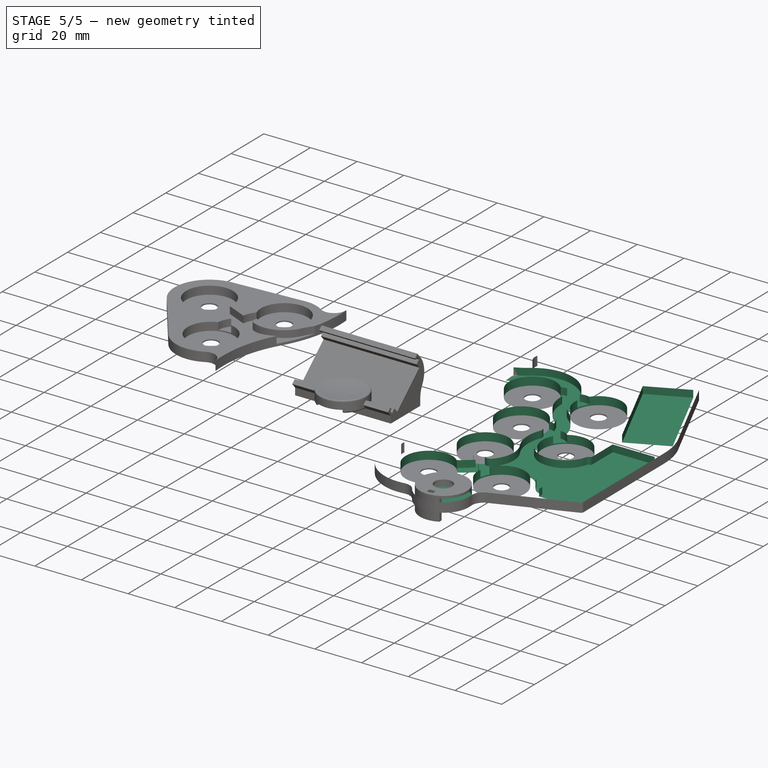
[diagram: stage 5 of 5 — iso view after this stage's code; geometry added in this stage tinted green]
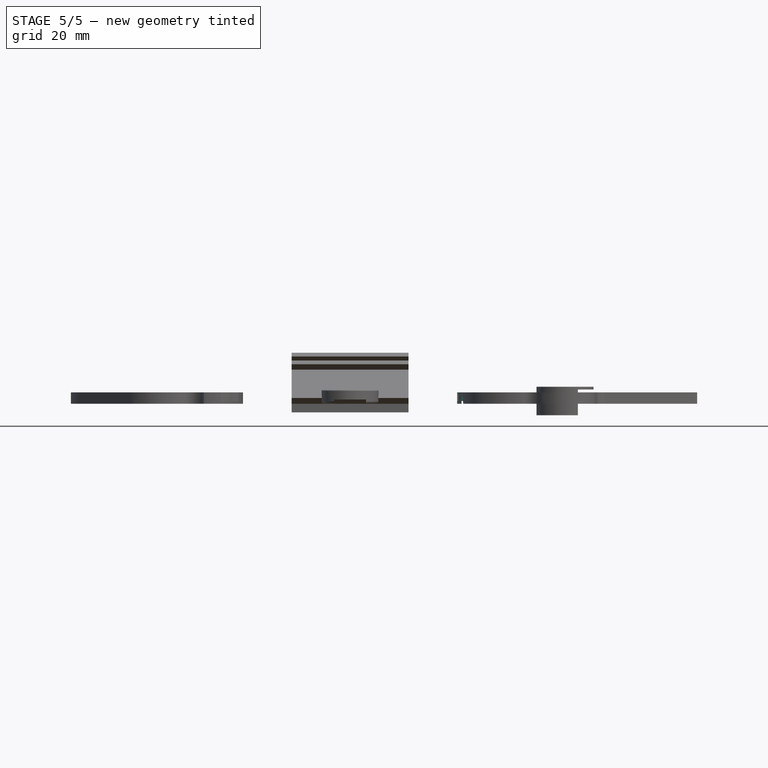
[diagram: stage 5 of 5 — front view after this stage's code; geometry added in this stage tinted green]
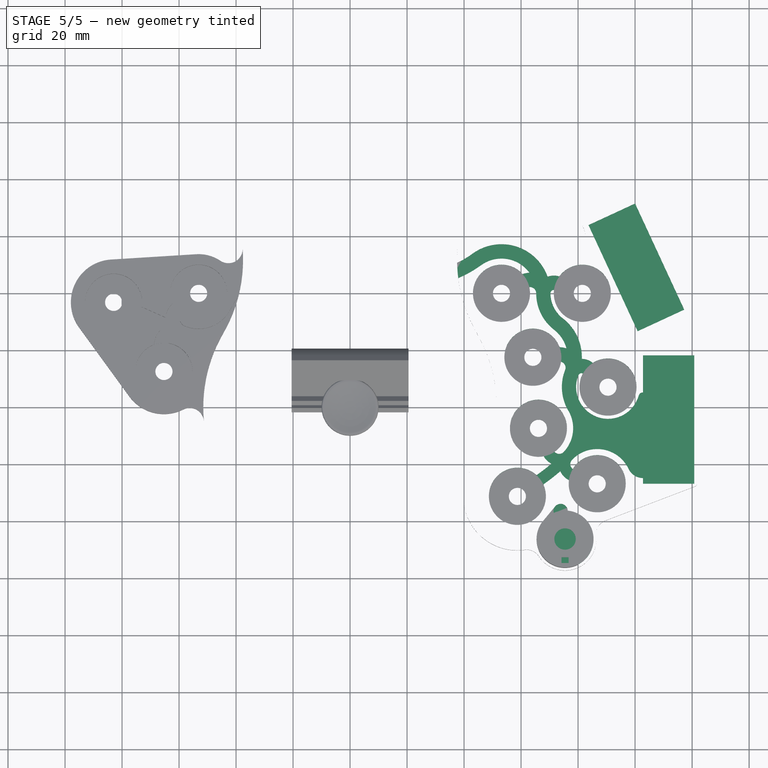
[diagram: stage 5 of 5 — top view after this stage's code; geometry added in this stage tinted green]
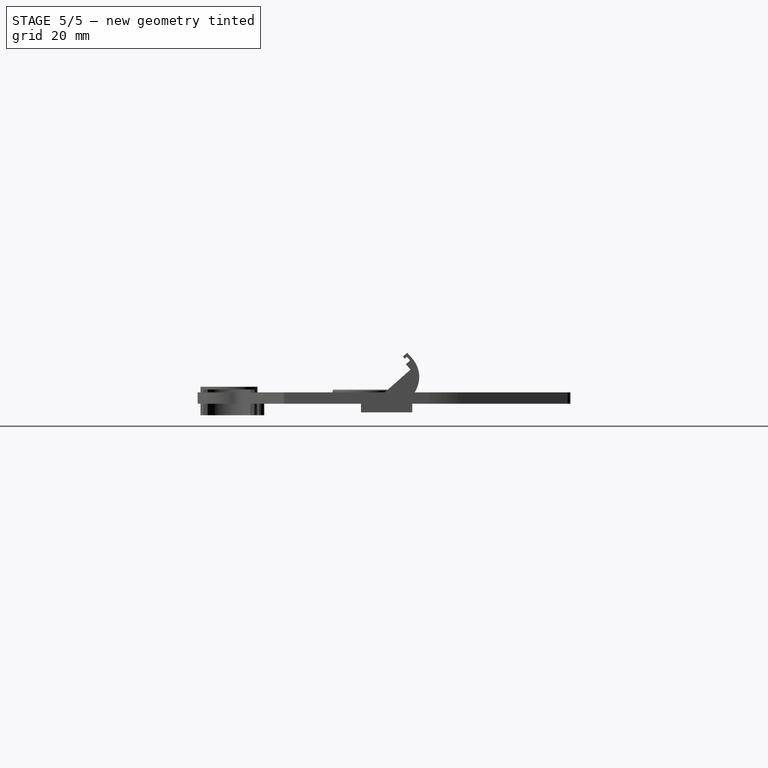
[diagram: stage 5 of 5 — right view after this stage's code; geometry added in this stage tinted green]
FEATURE [PartDesign::Pocket] Pocket001
  BaseFeature = -> Pad002
  Direction = (0,0,-1)
  Length = 3.5
  Length2 = 5
  Profile = -> Binder
  Refine = true
  Type = 0
  expr: Length = <<Misure>>.D2 - 1.5
FEATURE [PartDesign::Hole] Hole001
  BaseFeature = -> Pocket001
  CustomThreadClearance = 0
  Depth = 25
  DepthType = 0
  Diameter = 6
  DrillForDepth = false
  DrillPoint = 1
  DrillPointAngle = 118
  HoleCutCountersinkAngle = 90
  HoleCutCustomValues = false
  HoleCutDepth = 0
  HoleCutDiameter = 6.1
  HoleCutType = 0
  ModelThread = false
  Profile = -> Binder003
  Refine = true
  Tapered = false
  TaperedAngle = 90
  ThreadClass = 0
  ThreadDepth = 25
  ThreadDepthType = 0
  ThreadDirection = 0
  ThreadFit = 0
  ThreadSize = 0
  ThreadType = 0
  Threaded = false
  UseCustomThreadClearance = false
FEATURE [PartDesign::Pocket] Pocket002
  BaseFeature = -> Hole001
  Direction = (0,0,-1)
  Length = 2
  Length2 = 5
  Profile = -> Binder004
  Refine = true
  Reversed = true
  Type = 1
FEATURE [App::Link] Link002  label="Grooves_link"
  LinkedObject = -> Sketch006
FEATURE [PartDesign::SubShapeBinder] Binder005
  BindCopyOnChange = 0
  BindMode = 0
  ClaimChildren = false
  Context = -> Body002 [Binder005.]
  Fuse = false
  MakeFace = true
  OffsetFill = false
  OffsetIntersection = false
  OffsetJoinType = 0
  OffsetOpenResult = false
  PartialLoad = false
  Placement = pos=(0,0,4) rot=(0,0,1;0rad)
  Refine = true
  Relative = true
  Support = -> [Link002]
  _Version = 2
FEATURE [PartDesign::Pocket] Pocket003
  BaseFeature = -> Pocket002
  Direction = (0,0,-1)
  Length = 3
  Length2 = 5
  Profile = -> Binder005
  Refine = true
  Type = 0
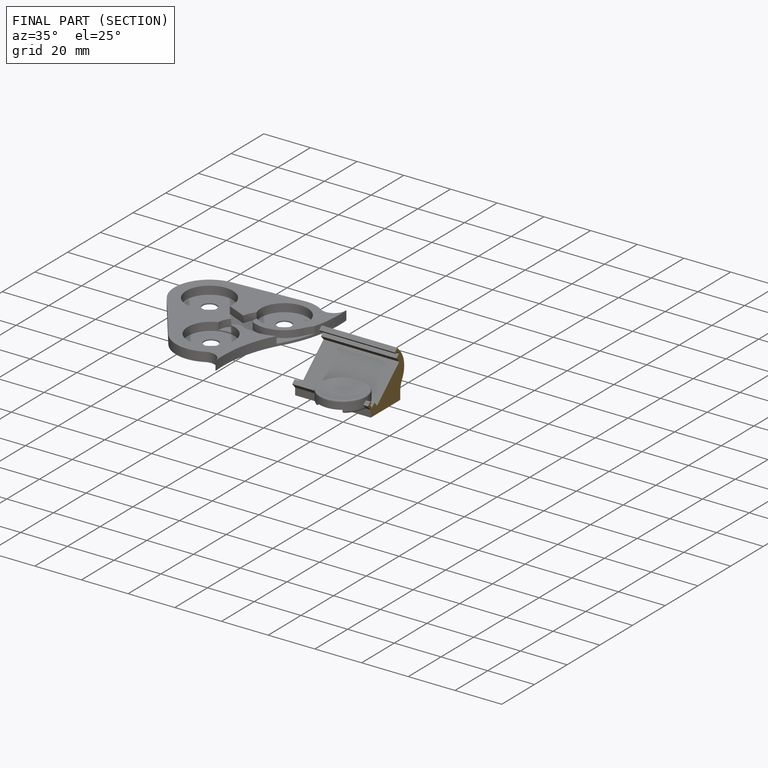
[diagram: finished part — half-section view (interior)]
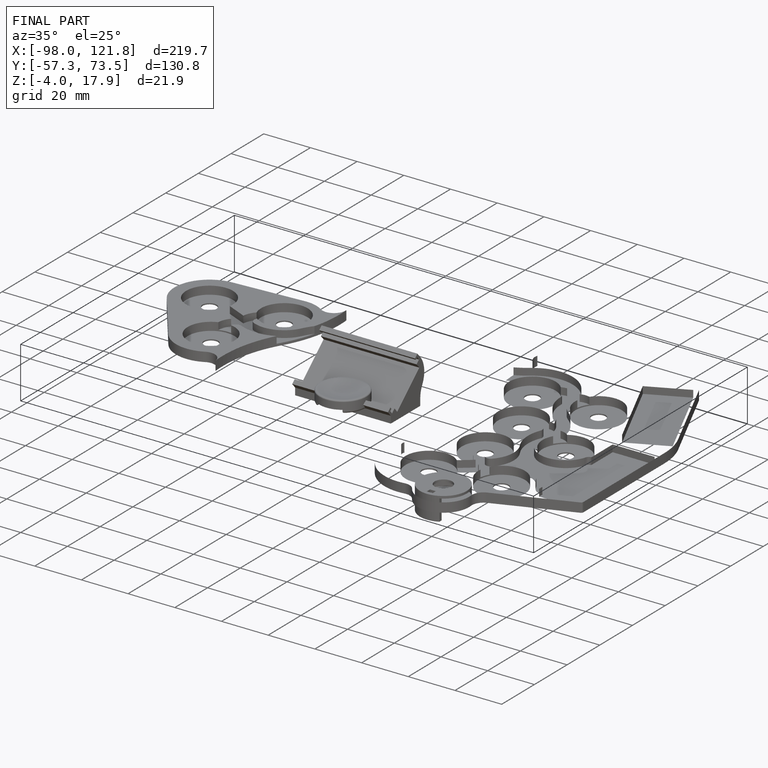
[diagram: finished part — iso view with bounding-box wireframe]
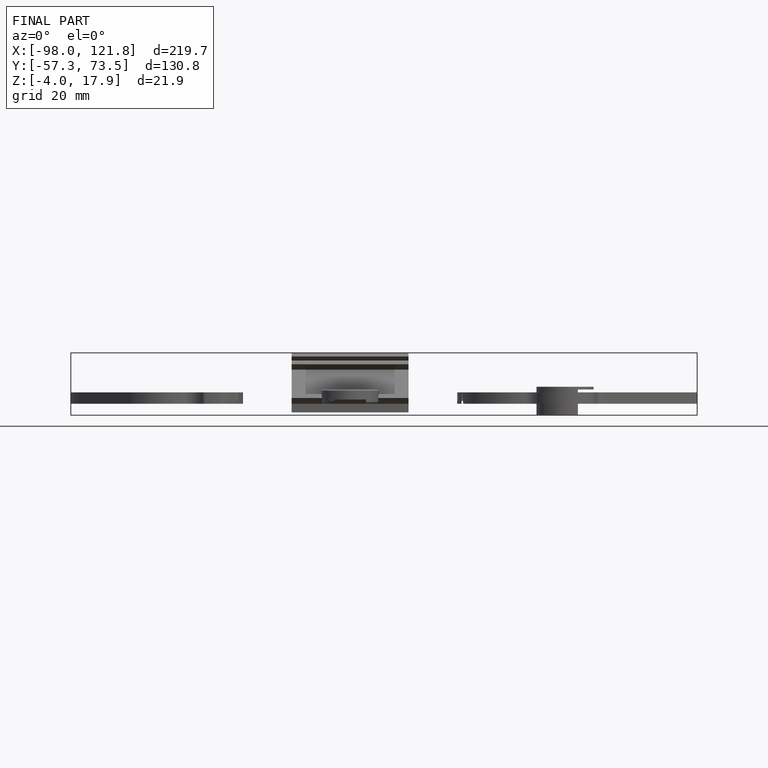
[diagram: finished part — front view with bounding-box wireframe]
